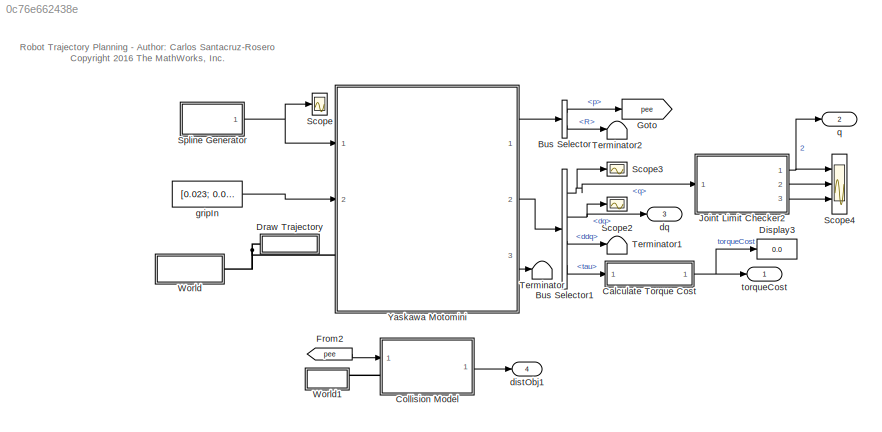
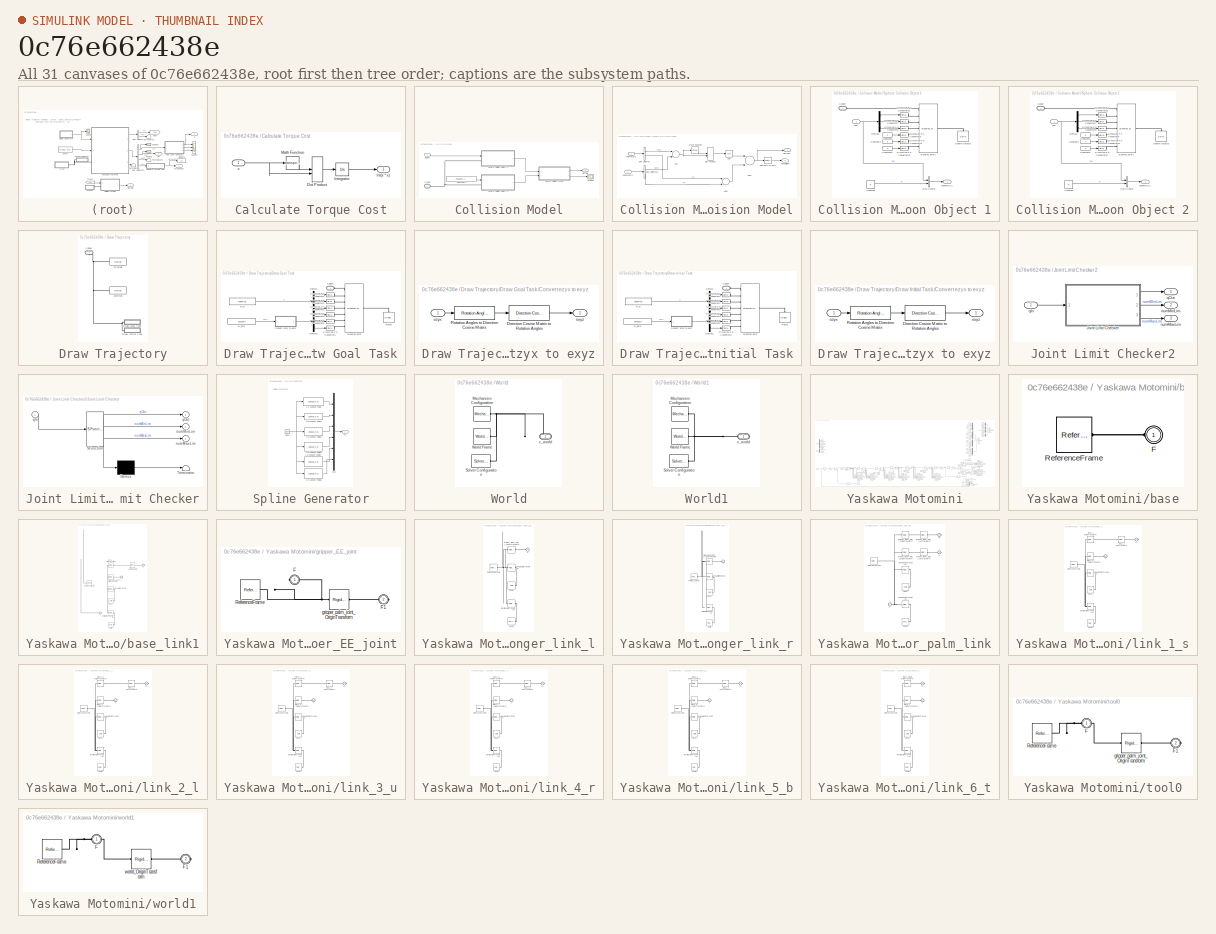
[diagram: thumbnail index - all 31 canvases of the model, root first then tree order]
MODEL slx_0c76e662438e
KIND model
CONFIG AbsTol = auto
CONFIG EnableMultiTasking = off
CONFIG FixedStep = 1e-3
CONFIG MaxStep = auto
CONFIG MinStep = auto
CONFIG RelTol = 1e-3
CONFIG SampleTimeConstraint = Unconstrained
CONFIG Solver = ode3
CONFIG SolverName = ode3
CONFIG StartTime = 0.0
CONFIG StopTime = totalTime
BLOCK [BusSelector] Bus Selector
  OutputAsBus = off
  OutputSignals = p,R
  Ports = [1, 2]
BLOCK [BusSelector] Bus Selector1
  OutputAsBus = off
  OutputSignals = q,dq,ddq,tau
  Ports = [1, 4]
BLOCK [SubSystem] Calculate Torque Cost
  Ports = [1, 1]
  RequestExecContextInheritance = off
BLOCK [DotProduct] Calculate Torque Cost/Dot Product
  OutDataTypeStr = Inherit: Inherit via internal rule
BLOCK [Outport] Calculate Torque Cost/Int(x'*x)
  IconDisplay = Port number
BLOCK [Integrator] Calculate Torque Cost/Integrator
  Ports = [1, 1]
BLOCK [Math] Calculate Torque Cost/Math Function
  Operator = transpose
  Ports = [1, 1]
BLOCK [Inport] Calculate Torque Cost/x
  IconDisplay = Port number
BLOCK [SubSystem] Collision Model
  Commented = on
  Ports = [1, 1, 0, 0, 0, 1]
  RequestExecContextInheritance = off
BLOCK [Constant] Collision Model/Constant2
  Value = obstacles(1).pos
BLOCK [Inport] Collision Model/EEPos
  IconDisplay = Port number
BLOCK [Scope] Collision Model/Scope5
  Floating = off
  NumInputPorts = 1
  Ports = [1]
  ScopeSpecificationString = Simulink.scopes.TimeScopeBlockCfg('CurrentConfiguration', extmgr.ConfigurationSet(extmgr.Configuration('Core','General UI',true),extmgr.Configuration('Core','Source UI',true),extmgr.Configuration('Sources','WiredSimulink',true,'DataLoggingVariableName','ScopeData5','DataLoggingLimitDataPoints',true,'DataLoggingSaveFormat','Array','DataLoggingDecimation','1','DataLoggingDecimateData',true),extmgr.C...<+1508ch>
BLOCK [SubSystem] Collision Model/Sphere Collision Model
  Ports = [2, 2]
  RequestExecContextInheritance = off
BLOCK [Sum] Collision Model/Sphere Collision Model/Add
  InputSameDT = off
  Inputs = +-
  OutDataTypeStr = Inherit: Inherit via internal rule
  Ports = [2, 1]
  SaturateOnIntegerOverflow = off
BLOCK [Sum] Collision Model/Sphere Collision Model/Add1
  InputSameDT = off
  Inputs = +-
  OutDataTypeStr = Inherit: Inherit via internal rule
  Ports = [2, 1]
  SaturateOnIntegerOverflow = off
BLOCK [Sum] Collision Model/Sphere Collision Model/Add2
  InputSameDT = off
  OutDataTypeStr = Inherit: Inherit via internal rule
  Ports = [2, 1]
  SaturateOnIntegerOverflow = off
BLOCK [BusSelector] Collision Model/Sphere Collision Model/Bus Selector
  OutputAsBus = off
  OutputSignals = pos,R
  Ports = [1, 2]
BLOCK [BusSelector] Collision Model/Sphere Collision Model/Bus Selector1
  OutputAsBus = off
  OutputSignals = pos,R
  Ports = [1, 2]
BLOCK [Reference] Collision Model/Sphere Collision Model/Compare To Zero  REF=simulink/Logic and Bit
Operations/Compare
To Zero
  Ports = [1, 1]
  SourceBlock = simulink/Logic and Bit\nOperations/Compare\nTo Zero
  SourceProductBaseCode = SL
  SourceProductName = Simulink
  SourceType = Compare To Zero
BLOCK [DotProduct] Collision Model/Sphere Collision Model/Dot Product
  OutDataTypeStr = Inherit: Inherit via internal rule
BLOCK [Math] Collision Model/Sphere Collision Model/Math Function
  Operator = transpose
  Ports = [1, 1]
BLOCK [Sqrt] Collision Model/Sphere Collision Model/Sqrt
BLOCK [Outport] Collision Model/Sphere Collision Model/distance
  IconDisplay = Port number
BLOCK [Outport] Collision Model/Sphere Collision Model/hasCollision
  IconDisplay = Port number
  Port = 2
BLOCK [Inport] Collision Model/Sphere Collision Model/sphereCO1
  IconDisplay = Port number
BLOCK [Inport] Collision Model/Sphere Collision Model/sphereCO2
  IconDisplay = Port number
  Port = 2
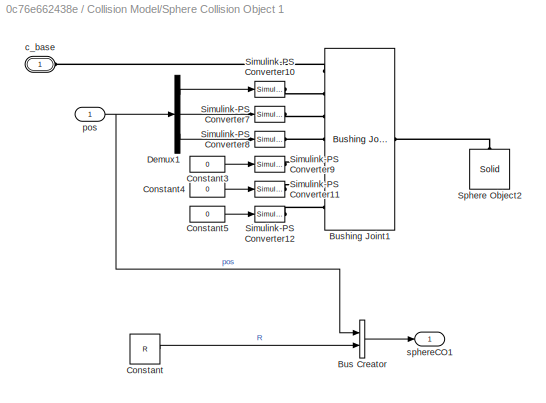
BLOCK [SubSystem] Collision Model/Sphere Collision Object 1
  Ports = [1, 1, 0, 0, 0, 1]
  RequestExecContextInheritance = off
BLOCK [BusCreator] Collision Model/Sphere Collision Object 1/Bus Creator
  DisplayOption = bar
  InheritFromInputs = on
  Inputs = 2
  Ports = [2, 1]
BLOCK [Reference] Collision Model/Sphere Collision Object 1/Bushing Joint1  REF=sm_lib/Joints/Bushing Joint
  Ports = [0, 0, 0, 0, 0, 7, 1]
  SourceBlock = sm_lib/Joints/Bushing Joint
  SourceProductBaseCode = MS
  SourceProductName = Simscape Multibody
  SourceType = Bushing Joint
BLOCK [Constant] Collision Model/Sphere Collision Object 1/Constant
  Value = R
BLOCK [Constant] Collision Model/Sphere Collision Object 1/Constant3
  Value = 0
BLOCK [Constant] Collision Model/Sphere Collision Object 1/Constant4
  Value = 0
BLOCK [Constant] Collision Model/Sphere Collision Object 1/Constant5
  Value = 0
BLOCK [Demux] Collision Model/Sphere Collision Object 1/Demux1
  DisplayOption = bar
  Outputs = 3
  Ports = [1, 3]
BLOCK [Reference] Collision Model/Sphere Collision Object 1/Simulink-PS Converter10  REF=nesl_utility/Simulink-PS
Converter
  Ports = [1, 0, 0, 0, 0, 0, 1]
  SourceBlock = nesl_utility/Simulink-PS\nConverter
  SourceProductBaseCode = SS
  SourceProductName = Simscape
  SourceType = Simulink-PS\nConverter
BLOCK [Reference] Collision Model/Sphere Collision Object 1/Simulink-PS Converter11  REF=nesl_utility/Simulink-PS
Converter
  Ports = [1, 0, 0, 0, 0, 0, 1]
  SourceBlock = nesl_utility/Simulink-PS\nConverter
  SourceProductBaseCode = SS
  SourceProductName = Simscape
  SourceType = Simulink-PS\nConverter
BLOCK [Reference] Collision Model/Sphere Collision Object 1/Simulink-PS Converter12  REF=nesl_utility/Simulink-PS
Converter
  Ports = [1, 0, 0, 0, 0, 0, 1]
  SourceBlock = nesl_utility/Simulink-PS\nConverter
  SourceProductBaseCode = SS
  SourceProductName = Simscape
  SourceType = Simulink-PS\nConverter
BLOCK [Reference] Collision Model/Sphere Collision Object 1/Simulink-PS Converter7  REF=nesl_utility/Simulink-PS
Converter
  Ports = [1, 0, 0, 0, 0, 0, 1]
  SourceBlock = nesl_utility/Simulink-PS\nConverter
  SourceProductBaseCode = SS
  SourceProductName = Simscape
  SourceType = Simulink-PS\nConverter
BLOCK [Reference] Collision Model/Sphere Collision Object 1/Simulink-PS Converter8  REF=nesl_utility/Simulink-PS
Converter
  Ports = [1, 0, 0, 0, 0, 0, 1]
  SourceBlock = nesl_utility/Simulink-PS\nConverter
  SourceProductBaseCode = SS
  SourceProductName = Simscape
  SourceType = Simulink-PS\nConverter
BLOCK [Reference] Collision Model/Sphere Collision Object 1/Simulink-PS Converter9  REF=nesl_utility/Simulink-PS
Converter
  Ports = [1, 0, 0, 0, 0, 0, 1]
  SourceBlock = nesl_utility/Simulink-PS\nConverter
  SourceProductBaseCode = SS
  SourceProductName = Simscape
  SourceType = Simulink-PS\nConverter
BLOCK [Reference] Collision Model/Sphere Collision Object 1/Sphere Object2  REF=sm_lib/Body Elements/Solid
  Ports = [0, 0, 0, 0, 0, 0, 1]
  SourceBlock = sm_lib/Body Elements/Solid
  SourceProductBaseCode = MS
  SourceProductName = Simscape Multibody
  SourceType = Solid
BLOCK [PMIOPort] Collision Model/Sphere Collision Object 1/c_base
  Side = Left
BLOCK [Inport] Collision Model/Sphere Collision Object 1/pos
  IconDisplay = Port number
BLOCK [Outport] Collision Model/Sphere Collision Object 1/sphereCO1
  IconDisplay = Port number
BLOCK [SubSystem] Collision Model/Sphere Collision Object 2
  Ports = [1, 1, 0, 0, 0, 1]
  RequestExecContextInheritance = off
BLOCK [BusCreator] Collision Model/Sphere Collision Object 2/Bus Creator
  DisplayOption = bar
  InheritFromInputs = on
  Inputs = 2
  Ports = [2, 1]
BLOCK [Reference] Collision Model/Sphere Collision Object 2/Bushing Joint1  REF=sm_lib/Joints/Bushing Joint
  Ports = [0, 0, 0, 0, 0, 7, 1]
  SourceBlock = sm_lib/Joints/Bushing Joint
  SourceProductBaseCode = MS
  SourceProductName = Simscape Multibody
  SourceType = Bushing Joint
BLOCK [Constant] Collision Model/Sphere Collision Object 2/Constant
  Value = R
BLOCK [Constant] Collision Model/Sphere Collision Object 2/Constant3
  Value = 0
BLOCK [Constant] Collision Model/Sphere Collision Object 2/Constant4
  Value = 0
BLOCK [Constant] Collision Model/Sphere Collision Object 2/Constant5
  Value = 0
BLOCK [Demux] Collision Model/Sphere Collision Object 2/Demux1
  DisplayOption = bar
  Outputs = 3
  Ports = [1, 3]
BLOCK [Reference] Collision Model/Sphere Collision Object 2/Simulink-PS Converter10  REF=nesl_utility/Simulink-PS
Converter
  Ports = [1, 0, 0, 0, 0, 0, 1]
  SourceBlock = nesl_utility/Simulink-PS\nConverter
  SourceProductBaseCode = SS
  SourceProductName = Simscape
  SourceType = Simulink-PS\nConverter
BLOCK [Reference] Collision Model/Sphere Collision Object 2/Simulink-PS Converter11  REF=nesl_utility/Simulink-PS
Converter
  Ports = [1, 0, 0, 0, 0, 0, 1]
  SourceBlock = nesl_utility/Simulink-PS\nConverter
  SourceProductBaseCode = SS
  SourceProductName = Simscape
  SourceType = Simulink-PS\nConverter
BLOCK [Reference] Collision Model/Sphere Collision Object 2/Simulink-PS Converter12  REF=nesl_utility/Simulink-PS
Converter
  Ports = [1, 0, 0, 0, 0, 0, 1]
  SourceBlock = nesl_utility/Simulink-PS\nConverter
  SourceProductBaseCode = SS
  SourceProductName = Simscape
  SourceType = Simulink-PS\nConverter
BLOCK [Reference] Collision Model/Sphere Collision Object 2/Simulink-PS Converter7  REF=nesl_utility/Simulink-PS
Converter
  Ports = [1, 0, 0, 0, 0, 0, 1]
  SourceBlock = nesl_utility/Simulink-PS\nConverter
  SourceProductBaseCode = SS
  SourceProductName = Simscape
  SourceType = Simulink-PS\nConverter
BLOCK [Reference] Collision Model/Sphere Collision Object 2/Simulink-PS Converter8  REF=nesl_utility/Simulink-PS
Converter
  Ports = [1, 0, 0, 0, 0, 0, 1]
  SourceBlock = nesl_utility/Simulink-PS\nConverter
  SourceProductBaseCode = SS
  SourceProductName = Simscape
  SourceType = Simulink-PS\nConverter
BLOCK [Reference] Collision Model/Sphere Collision Object 2/Simulink-PS Converter9  REF=nesl_utility/Simulink-PS
Converter
  Ports = [1, 0, 0, 0, 0, 0, 1]
  SourceBlock = nesl_utility/Simulink-PS\nConverter
  SourceProductBaseCode = SS
  SourceProductName = Simscape
  SourceType = Simulink-PS\nConverter
BLOCK [Reference] Collision Model/Sphere Collision Object 2/Sphere Object2  REF=sm_lib/Body Elements/Solid
  Ports = [0, 0, 0, 0, 0, 0, 1]
  SourceBlock = sm_lib/Body Elements/Solid
  SourceProductBaseCode = MS
  SourceProductName = Simscape Multibody
  SourceType = Solid
BLOCK [PMIOPort] Collision Model/Sphere Collision Object 2/c_base
  Side = Left
BLOCK [Inport] Collision Model/Sphere Collision Object 2/pos
  IconDisplay = Port number
BLOCK [Outport] Collision Model/Sphere Collision Object 2/sphereCO1
  IconDisplay = Port number
BLOCK [PMIOPort] Collision Model/c_base
  Side = Left
BLOCK [Outport] Collision Model/distObj1
  IconDisplay = Port number
BLOCK [Display] Display3
  Decimation = 1
  Ports = [1]
BLOCK [SubSystem] Draw Trajectory
  Ports = [0, 0, 0, 0, 0, 1]
  RequestExecContextInheritance = off
BLOCK [SubSystem] Draw Trajectory/Draw Goal Task
  Ports = [0, 0, 0, 0, 0, 1]
  RequestExecContextInheritance = off
BLOCK [Reference] Draw Trajectory/Draw Goal Task/Bushing Joint  REF=sm_lib/Joints/Bushing Joint
  Ports = [0, 0, 0, 0, 0, 7, 1]
  SourceBlock = sm_lib/Joints/Bushing Joint
  SourceProductBaseCode = MS
  SourceProductName = Simscape Multibody
  SourceType = Bushing Joint
BLOCK [SubSystem] Draw Trajectory/Draw Goal Task/Convert ezyx to exyz
  Ports = [1, 1]
  RequestExecContextInheritance = off
BLOCK [Reference] Draw Trajectory/Draw Goal Task/Convert ezyx to exyz/Direction Cosine Matrix to Rotation Angles  REF=sharedtransform/Direction Cosine Matrix
to Rotation Angles
  AttributesFormatString = Rotation Order: %<rotationOrder>
  Ports = [1, 1]
  SourceBlock = sharedtransform/Direction Cosine Matrix\nto Rotation Angles
  SourceProductBaseCode = AE
  SourceProductName = Aerospace Blockset
  SourceType = DCM2Ang
BLOCK [Reference] Draw Trajectory/Draw Goal Task/Convert ezyx to exyz/Rotation Angles to Direction Cosine Matrix  REF=sharedtransform/Rotation Angles to
Direction Cosine Matrix
  AttributesFormatString = Rotation Order: %<rotationOrder>
  Ports = [1, 1]
  SourceBlock = sharedtransform/Rotation Angles to\nDirection Cosine Matrix
  SourceProductBaseCode = AE
  SourceProductName = Aerospace Blockset
  SourceType = Ang2DCM
BLOCK [Outport] Draw Trajectory/Draw Goal Task/Convert ezyx to exyz/exyz
  IconDisplay = Port number
BLOCK [Inport] Draw Trajectory/Draw Goal Task/Convert ezyx to exyz/ezyx
  IconDisplay = Port number
BLOCK [Demux] Draw Trajectory/Draw Goal Task/Demux
  DisplayOption = bar
  Outputs = 3
  Ports = [1, 3]
BLOCK [Demux] Draw Trajectory/Draw Goal Task/Demux1
  DisplayOption = bar
  Outputs = 3
  Ports = [1, 3]
BLOCK [Reference] Draw Trajectory/Draw Goal Task/Frame  REF=sm_lib/Body Elements/Graphic
  Ports = [0, 0, 0, 0, 0, 0, 1]
  SourceBlock = sm_lib/Body Elements/Graphic
  SourceProductBaseCode = MS
  SourceProductName = Simscape Multibody
  SourceType = Graphic
BLOCK [Reference] Draw Trajectory/Draw Goal Task/Simulink-PS Converter1  REF=nesl_utility/Simulink-PS
Converter
  Ports = [1, 0, 0, 0, 0, 0, 1]
  SourceBlock = nesl_utility/Simulink-PS\nConverter
  SourceProductBaseCode = SS
  SourceProductName = Simscape
  SourceType = Simulink-PS\nConverter
BLOCK [Reference] Draw Trajectory/Draw Goal Task/Simulink-PS Converter2  REF=nesl_utility/Simulink-PS
Converter
  Ports = [1, 0, 0, 0, 0, 0, 1]
  SourceBlock = nesl_utility/Simulink-PS\nConverter
  SourceProductBaseCode = SS
  SourceProductName = Simscape
  SourceType = Simulink-PS\nConverter
BLOCK [Reference] Draw Trajectory/Draw Goal Task/Simulink-PS Converter3  REF=nesl_utility/Simulink-PS
Converter
  Ports = [1, 0, 0, 0, 0, 0, 1]
  SourceBlock = nesl_utility/Simulink-PS\nConverter
  SourceProductBaseCode = SS
  SourceProductName = Simscape
  SourceType = Simulink-PS\nConverter
BLOCK [Reference] Draw Trajectory/Draw Goal Task/Simulink-PS Converter4  REF=nesl_utility/Simulink-PS
Converter
  Ports = [1, 0, 0, 0, 0, 0, 1]
  SourceBlock = nesl_utility/Simulink-PS\nConverter
  SourceProductBaseCode = SS
  SourceProductName = Simscape
  SourceType = Simulink-PS\nConverter
BLOCK [Reference] Draw Trajectory/Draw Goal Task/Simulink-PS Converter5  REF=nesl_utility/Simulink-PS
Converter
  Ports = [1, 0, 0, 0, 0, 0, 1]
  SourceBlock = nesl_utility/Simulink-PS\nConverter
  SourceProductBaseCode = SS
  SourceProductName = Simscape
  SourceType = Simulink-PS\nConverter
BLOCK [Reference] Draw Trajectory/Draw Goal Task/Simulink-PS Converter6  REF=nesl_utility/Simulink-PS
Converter
  Ports = [1, 0, 0, 0, 0, 0, 1]
  SourceBlock = nesl_utility/Simulink-PS\nConverter
  SourceProductBaseCode = SS
  SourceProductName = Simscape
  SourceType = Simulink-PS\nConverter
BLOCK [PMIOPort] Draw Trajectory/Draw Goal Task/c_base
  Side = Left
BLOCK [Constant] Draw Trajectory/Draw Goal Task/w_ezyx
  Value = TaskEzyx
BLOCK [Constant] Draw Trajectory/Draw Goal Task/w_p
  Value = TaskPos
BLOCK [SubSystem] Draw Trajectory/Draw Initial Task
  Commented = on
  Ports = [0, 0, 0, 0, 0, 1]
  RequestExecContextInheritance = off
BLOCK [Reference] Draw Trajectory/Draw Initial Task/Bushing Joint  REF=sm_lib/Joints/Bushing Joint
  Ports = [0, 0, 0, 0, 0, 7, 1]
  SourceBlock = sm_lib/Joints/Bushing Joint
  SourceProductBaseCode = MS
  SourceProductName = Simscape Multibody
  SourceType = Bushing Joint
BLOCK [SubSystem] Draw Trajectory/Draw Initial Task/Convert ezyx to exyz
  Ports = [1, 1]
  RequestExecContextInheritance = off
BLOCK [Reference] Draw Trajectory/Draw Initial Task/Convert ezyx to exyz/Direction Cosine Matrix to Rotation Angles  REF=aerolibtransform2/Direction Cosine Matrix
to Rotation Angles
  AttributesFormatString = Rotation Order: %<rotationOrder>
  Ports = [1, 1]
  SourceBlock = aerolibtransform2/Direction Cosine Matrix\nto Rotation Angles
  SourceProductBaseCode = AE
  SourceProductName = Aerospace Blockset
  SourceType = DCM2Ang
BLOCK [Reference] Draw Trajectory/Draw Initial Task/Convert ezyx to exyz/Rotation Angles to Direction Cosine Matrix  REF=aerolibtransform2/Rotation Angles to
Direction Cosine Matrix
  AttributesFormatString = Rotation Order: %<rotationOrder>
  Ports = [1, 1]
  SourceBlock = aerolibtransform2/Rotation Angles to\nDirection Cosine Matrix
  SourceProductBaseCode = AE
  SourceProductName = Aerospace Blockset
  SourceType = Ang2DCM
BLOCK [Outport] Draw Trajectory/Draw Initial Task/Convert ezyx to exyz/exyz
  IconDisplay = Port number
BLOCK [Inport] Draw Trajectory/Draw Initial Task/Convert ezyx to exyz/ezyx
  IconDisplay = Port number
BLOCK [Demux] Draw Trajectory/Draw Initial Task/Demux
  DisplayOption = bar
  Outputs = 3
  Ports = [1, 3]
BLOCK [Demux] Draw Trajectory/Draw Initial Task/Demux1
  DisplayOption = bar
  Outputs = 3
  Ports = [1, 3]
BLOCK [Reference] Draw Trajectory/Draw Initial Task/Frame  REF=sm_lib/Body Elements/Graphic
  Ports = [0, 0, 0, 0, 0, 0, 1]
  SourceBlock = sm_lib/Body Elements/Graphic
  SourceProductBaseCode = MS
  SourceProductName = Simscape Multibody
  SourceType = Graphic
BLOCK [Reference] Draw Trajectory/Draw Initial Task/Simulink-PS Converter1  REF=nesl_utility/Simulink-PS
Converter
  Ports = [1, 0, 0, 0, 0, 0, 1]
  SourceBlock = nesl_utility/Simulink-PS\nConverter
  SourceProductBaseCode = SS
  SourceProductName = Simscape
  SourceType = Simulink-PS\nConverter
BLOCK [Reference] Draw Trajectory/Draw Initial Task/Simulink-PS Converter2  REF=nesl_utility/Simulink-PS
Converter
  Ports = [1, 0, 0, 0, 0, 0, 1]
  SourceBlock = nesl_utility/Simulink-PS\nConverter
  SourceProductBaseCode = SS
  SourceProductName = Simscape
  SourceType = Simulink-PS\nConverter
BLOCK [Reference] Draw Trajectory/Draw Initial Task/Simulink-PS Converter3  REF=nesl_utility/Simulink-PS
Converter
  Ports = [1, 0, 0, 0, 0, 0, 1]
  SourceBlock = nesl_utility/Simulink-PS\nConverter
  SourceProductBaseCode = SS
  SourceProductName = Simscape
  SourceType = Simulink-PS\nConverter
BLOCK [Reference] Draw Trajectory/Draw Initial Task/Simulink-PS Converter4  REF=nesl_utility/Simulink-PS
Converter
  Ports = [1, 0, 0, 0, 0, 0, 1]
  SourceBlock = nesl_utility/Simulink-PS\nConverter
  SourceProductBaseCode = SS
  SourceProductName = Simscape
  SourceType = Simulink-PS\nConverter
BLOCK [Reference] Draw Trajectory/Draw Initial Task/Simulink-PS Converter5  REF=nesl_utility/Simulink-PS
Converter
  Ports = [1, 0, 0, 0, 0, 0, 1]
  SourceBlock = nesl_utility/Simulink-PS\nConverter
  SourceProductBaseCode = SS
  SourceProductName = Simscape
  SourceType = Simulink-PS\nConverter
BLOCK [Reference] Draw Trajectory/Draw Initial Task/Simulink-PS Converter6  REF=nesl_utility/Simulink-PS
Converter
  Ports = [1, 0, 0, 0, 0, 0, 1]
  SourceBlock = nesl_utility/Simulink-PS\nConverter
  SourceProductBaseCode = SS
  SourceProductName = Simscape
  SourceType = Simulink-PS\nConverter
BLOCK [PMIOPort] Draw Trajectory/Draw Initial Task/c_base
  Side = Left
BLOCK [Constant] Draw Trajectory/Draw Initial Task/w_ezyx
  Value = TaskEzyx
BLOCK [Constant] Draw Trajectory/Draw Initial Task/w_p
  Value = TaskPos
BLOCK [Reference] Draw Trajectory/Optimal  REF=sm_lib/Curves and Surfaces/Spline
  Ports = [0, 0, 0, 0, 0, 1, 1]
  SourceBlock = sm_lib/Curves and Surfaces/Spline
  SourceProductBaseCode = MS
  SourceProductName = Simscape Multibody
  SourceType = Spline
BLOCK [Reference] Draw Trajectory/Original  REF=sm_lib/Curves and Surfaces/Spline
  Ports = [0, 0, 0, 0, 0, 1, 1]
  SourceBlock = sm_lib/Curves and Surfaces/Spline
  SourceProductBaseCode = MS
  SourceProductName = Simscape Multibody
  SourceType = Spline
BLOCK [PMIOPort] Draw Trajectory/c_base
  Side = Left
BLOCK [From] From2
  GotoTag = pee
BLOCK [Goto] Goto
  GotoTag = pee
BLOCK [SubSystem] Joint Limit Checker2
  Ports = [1, 3]
  RequestExecContextInheritance = off
  VariantControl = mode == OP2Model ||  mode == OP2ROS
BLOCK [SubSystem] Joint Limit Checker2/Joint Limit Checker
  ErrorFcn = Stateflow.Translate.translate
  PermitHierarchicalResolution = ExplicitOnly
  Ports = [1, 3]
  RequestExecContextInheritance = off
  SFBlockType = MATLAB Function
  TreatAsAtomicUnit = on
BLOCK [Demux] Joint Limit Checker2/Joint Limit Checker/ Demux 
  Outputs = 1
  Ports = [1, 1]
BLOCK [S-Function] Joint Limit Checker2/Joint Limit Checker/ SFunction 
  EnableBusSupport = on
  FunctionName = sf_sfun
  Parameters = qMax,qMin
  PortCounts = [1 4]
  Ports = [1, 4]
  SFcnIsStateOwnerBlock = off
  SFunctionDeploymentMode = off
  Tag = Stateflow S-Function motominiPlanning 2
BLOCK [Terminator] Joint Limit Checker2/Joint Limit Checker/ Terminator 
BLOCK [Outport] Joint Limit Checker2/Joint Limit Checker/numMaxLim
  IconDisplay = Port number
  Port = 3
BLOCK [Outport] Joint Limit Checker2/Joint Limit Checker/numMinLim
  IconDisplay = Port number
  Port = 2
BLOCK [Inport] Joint Limit Checker2/Joint Limit Checker/qIn
  IconDisplay = Port number
BLOCK [Outport] Joint Limit Checker2/Joint Limit Checker/qOut
  IconDisplay = Port number
BLOCK [Outport] Joint Limit Checker2/numMaxLim
  IconDisplay = Port number
  Port = 3
BLOCK [Outport] Joint Limit Checker2/numMinLim
  IconDisplay = Port number
  Port = 2
BLOCK [Inport] Joint Limit Checker2/qIn
  IconDisplay = Port number
BLOCK [Outport] Joint Limit Checker2/qOut
  IconDisplay = Port number
BLOCK [Scope] Scope
  Floating = off
  NumInputPorts = 1
  Ports = [1]
  ScopeSpecificationString = Simulink.scopes.TimeScopeBlockCfg('CurrentConfiguration', extmgr.ConfigurationSet(extmgr.Configuration('Core','General UI',true),extmgr.Configuration('Core','Source UI',true),extmgr.Configuration('Sources','WiredSimulink',true),extmgr.Configuration('Visuals','Time Domain',true,'SerializedDisplays',{struct('MinYLimReal','-1.30817','MaxYLimReal','3.57174','YLabelReal','','MinYLimMag','0.00000','MaxY...<+1502ch>
BLOCK [Scope] Scope2
  Floating = off
  NumInputPorts = 1
  Ports = [1]
  ScopeSpecificationString = Simulink.scopes.TimeScopeBlockCfg('CurrentConfiguration', extmgr.ConfigurationSet(extmgr.Configuration('Core','General UI',true),extmgr.Configuration('Core','Source UI',true),extmgr.Configuration('Sources','WiredSimulink',true,'DataLoggingVariableName','ScopeData2'),extmgr.Configuration('Visuals','Time Domain',true,'SerializedDisplays',{struct('MinYLimReal','-3.86025','MaxYLimReal','4.2376','YLabe...<+1430ch>
BLOCK [Scope] Scope3
  Floating = off
  NumInputPorts = 1
  Ports = [1]
  ScopeSpecificationString = Simulink.scopes.TimeScopeBlockCfg('CurrentConfiguration', extmgr.ConfigurationSet(extmgr.Configuration('Core','General UI',true),extmgr.Configuration('Core','Source UI',true),extmgr.Configuration('Sources','WiredSimulink',true,'DataLoggingVariableName','ScopeData3'),extmgr.Configuration('Visuals','Time Domain',true,'SerializedDisplays',{struct('MinYLimReal','-1.88283','MaxYLimReal','3.50594','YLab...<+1428ch>
BLOCK [Scope] Scope4
  Floating = off
  NumInputPorts = 3
  Ports = [3]
  ScopeSpecificationString = Simulink.scopes.TimeScopeBlockCfg('CurrentConfiguration', extmgr.ConfigurationSet(extmgr.Configuration('Core','General UI',true),extmgr.Configuration('Core','Source UI',true),extmgr.Configuration('Sources','WiredSimulink',true,'DataLoggingVariableName','ScopeData3','DataLoggingLimitDataPoints',true,'DataLoggingSaveFormat','Array','DataLoggingDecimation','1','DataLoggingDecimateData',true),extmgr.C...<+2959ch>
BLOCK [SubSystem] Spline Generator
  Ports = [0, 1]
  RequestExecContextInheritance = off
BLOCK [Lookup_n-D] Spline Generator/1-D Lookup Table
  BreakpointsForDimension1 = t
  ExtrapMethod = Cubic spline
  InternalRulePriority = Speed
  InterpMethod = Cubic spline
  LookupTableObject = ''
  NumberOfTableDimensions = 1
  Ports = [1, 1]
  RndMeth = Simplest
  Table = Qt(1,:)
BLOCK [Lookup_n-D] Spline Generator/1-D Lookup Table1
  BreakpointsForDimension1 = t
  ExtrapMethod = Cubic spline
  InternalRulePriority = Speed
  InterpMethod = Cubic spline
  LookupTableObject = ''
  NumberOfTableDimensions = 1
  Ports = [1, 1]
  RndMeth = Simplest
  Table = Qt(2,:)
BLOCK [Lookup_n-D] Spline Generator/1-D Lookup Table2
  BreakpointsForDimension1 = t
  ExtrapMethod = Cubic spline
  InternalRulePriority = Speed
  InterpMethod = Cubic spline
  LookupTableObject = ''
  NumberOfTableDimensions = 1
  Ports = [1, 1]
  RndMeth = Simplest
  Table = Qt(3,:)
BLOCK [Lookup_n-D] Spline Generator/1-D Lookup Table3
  BreakpointsForDimension1 = t
  ExtrapMethod = Cubic spline
  InternalRulePriority = Speed
  InterpMethod = Cubic spline
  LookupTableObject = ''
  NumberOfTableDimensions = 1
  Ports = [1, 1]
  RndMeth = Simplest
  Table = Qt(4,:)
BLOCK [Lookup_n-D] Spline Generator/1-D Lookup Table4
  BreakpointsForDimension1 = t
  ExtrapMethod = Cubic spline
  InternalRulePriority = Speed
  InterpMethod = Cubic spline
  LookupTableObject = ''
  NumberOfTableDimensions = 1
  Ports = [1, 1]
  RndMeth = Simplest
  Table = Qt(5,:)
BLOCK [Lookup_n-D] Spline Generator/1-D Lookup Table5
  BreakpointsForDimension1 = t
  ExtrapMethod = Cubic spline
  InternalRulePriority = Speed
  InterpMethod = Cubic spline
  LookupTableObject = ''
  NumberOfTableDimensions = 1
  Ports = [1, 1]
  RndMeth = Simplest
  Table = Qt(6,:)
BLOCK [Clock] Spline Generator/Clock
BLOCK [Mux] Spline Generator/Mux
  DisplayOption = bar
  Inputs = 6
  Ports = [6, 1]
BLOCK [Outport] Spline Generator/q_t
  IconDisplay = Port number
BLOCK [Terminator] Terminator
BLOCK [Terminator] Terminator1
BLOCK [Terminator] Terminator2
BLOCK [SubSystem] World
  Ports = [0, 0, 0, 0, 0, 0, 1]
  RequestExecContextInheritance = off
BLOCK [Reference] World/Mechanism Configuration  REF=sm_lib/Utilities/Mechanism
Configuration
  Ports = [0, 0, 0, 0, 0, 0, 1]
  SourceBlock = sm_lib/Utilities/Mechanism\nConfiguration
  SourceProductBaseCode = MS
  SourceProductName = Simscape Multibody
  SourceType = Mechanism\nConfiguration
BLOCK [Reference] World/Solver Configuration  REF=nesl_utility/Solver
Configuration
  Ports = [0, 0, 0, 0, 0, 0, 1]
  SourceBlock = nesl_utility/Solver\nConfiguration
  SourceProductBaseCode = SS
  SourceProductName = Simscape
  SourceType = Solver\nConfiguration
BLOCK [Reference] World/World Frame  REF=sm_lib/Frames and
Transforms/World Frame
  Ports = [0, 0, 0, 0, 0, 0, 1]
  SourceBlock = sm_lib/Frames and\nTransforms/World Frame
  SourceProductBaseCode = MS
  SourceProductName = Simscape Multibody
  SourceType = World Frame
BLOCK [PMIOPort] World/c_world
  Side = Right
BLOCK [SubSystem] World1
  Ports = [0, 0, 0, 0, 0, 0, 1]
  RequestExecContextInheritance = off
BLOCK [Reference] World1/Mechanism Configuration  REF=sm_lib/Utilities/Mechanism
Configuration
  Ports = [0, 0, 0, 0, 0, 0, 1]
  SourceBlock = sm_lib/Utilities/Mechanism\nConfiguration
  SourceProductBaseCode = MS
  SourceProductName = Simscape Multibody
  SourceType = Mechanism\nConfiguration
BLOCK [Reference] World1/Solver Configuration  REF=nesl_utility/Solver
Configuration
  Ports = [0, 0, 0, 0, 0, 0, 1]
  SourceBlock = nesl_utility/Solver\nConfiguration
  SourceProductBaseCode = SS
  SourceProductName = Simscape
  SourceType = Solver\nConfiguration
BLOCK [Reference] World1/World Frame  REF=sm_lib/Frames and
Transforms/World Frame
  Ports = [0, 0, 0, 0, 0, 0, 1]
  SourceBlock = sm_lib/Frames and\nTransforms/World Frame
  SourceProductBaseCode = MS
  SourceProductName = Simscape Multibody
  SourceType = World Frame
BLOCK [PMIOPort] World1/c_world
  Side = Right
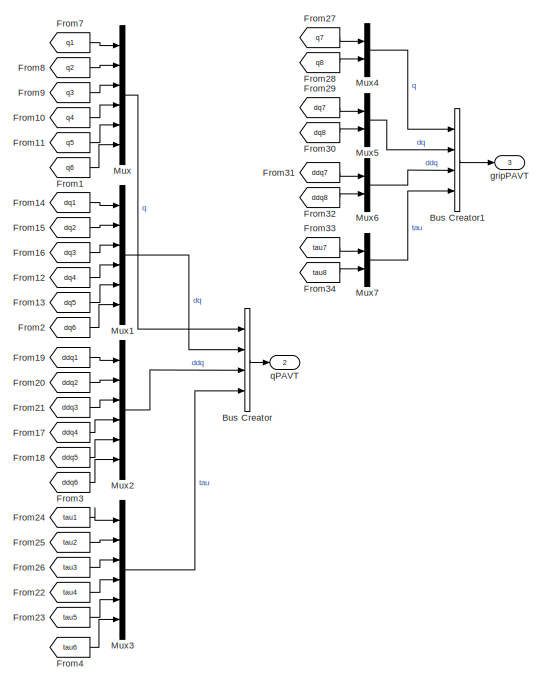
[diagram: Yaskawa Motomini - part 1/5, top right region]
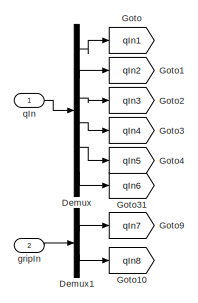
[diagram: Yaskawa Motomini - part 2/5, middle left region]
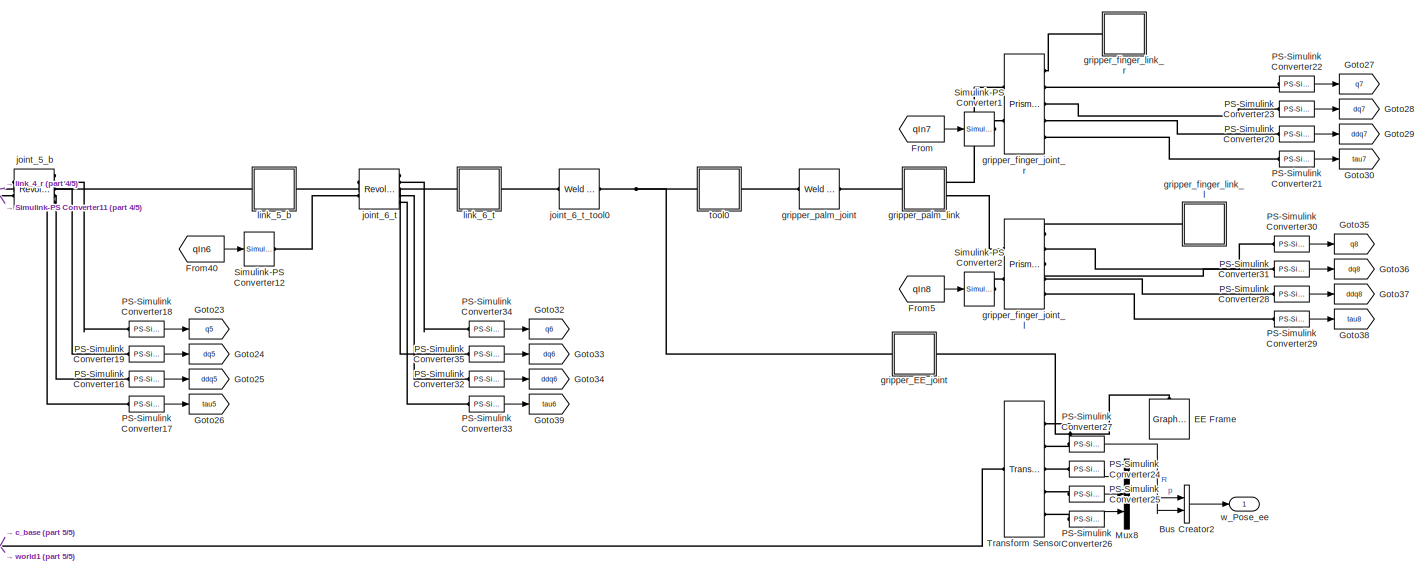
[diagram: Yaskawa Motomini - part 3/5, bottom right region]
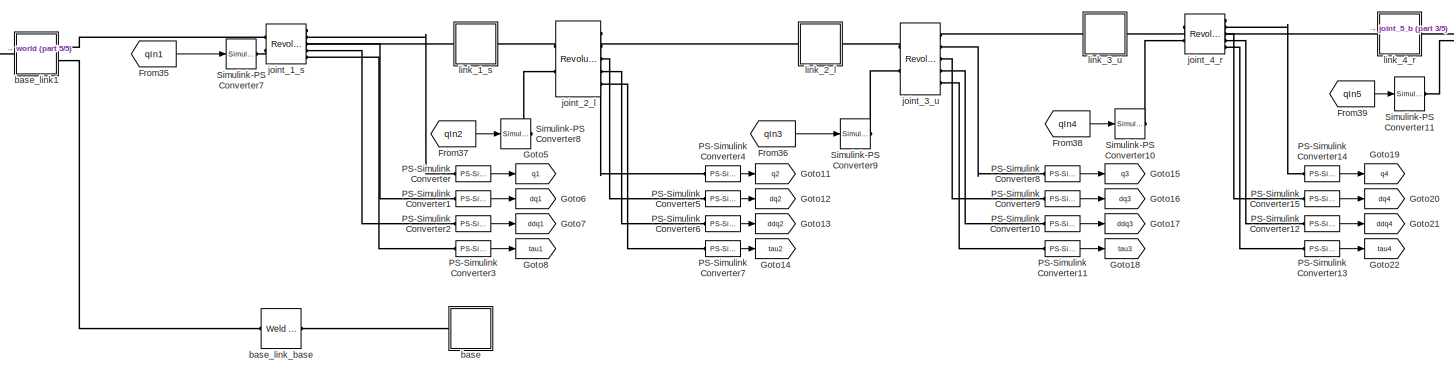
[diagram: Yaskawa Motomini - part 4/5, bottom left region]
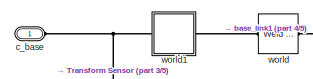
[diagram: Yaskawa Motomini - part 5/5, bottom left region]
BLOCK [SubSystem] Yaskawa Motomini
  Ports = [2, 3, 0, 0, 0, 1]
  RequestExecContextInheritance = off
BLOCK [BusCreator] Yaskawa Motomini/Bus Creator
  DisplayOption = bar
  InheritFromInputs = on
  Inputs = 4
  Ports = [4, 1]
BLOCK [BusCreator] Yaskawa Motomini/Bus Creator1
  DisplayOption = bar
  InheritFromInputs = on
  Inputs = 4
  Ports = [4, 1]
BLOCK [BusCreator] Yaskawa Motomini/Bus Creator2
  DisplayOption = bar
  InheritFromInputs = on
  Inputs = 2
  Ports = [2, 1]
BLOCK [Demux] Yaskawa Motomini/Demux
  DisplayOption = bar
  Outputs = 6
  Ports = [1, 6]
BLOCK [Demux] Yaskawa Motomini/Demux1
  DisplayOption = bar
  Outputs = 2
  Ports = [1, 2]
BLOCK [Reference] Yaskawa Motomini/EE Frame  REF=sm_lib/Body Elements/Graphic
  Ports = [0, 0, 0, 0, 0, 0, 1]
  SourceBlock = sm_lib/Body Elements/Graphic
  SourceProductBaseCode = MS
  SourceProductName = Simscape Multibody
  SourceType = Graphic
BLOCK [From] Yaskawa Motomini/From
  GotoTag = qIn7
BLOCK [From] Yaskawa Motomini/From1
  GotoTag = q6
BLOCK [From] Yaskawa Motomini/From10
  GotoTag = q4
BLOCK [From] Yaskawa Motomini/From11
  GotoTag = q5
BLOCK [From] Yaskawa Motomini/From12
  GotoTag = dq4
BLOCK [From] Yaskawa Motomini/From13
  GotoTag = dq5
BLOCK [From] Yaskawa Motomini/From14
  GotoTag = dq1
BLOCK [From] Yaskawa Motomini/From15
  GotoTag = dq2
BLOCK [From] Yaskawa Motomini/From16
  GotoTag = dq3
BLOCK [From] Yaskawa Motomini/From17
  GotoTag = ddq4
BLOCK [From] Yaskawa Motomini/From18
  GotoTag = ddq5
BLOCK [From] Yaskawa Motomini/From19
  GotoTag = ddq1
BLOCK [From] Yaskawa Motomini/From2
  GotoTag = dq6
BLOCK [From] Yaskawa Motomini/From20
  GotoTag = ddq2
BLOCK [From] Yaskawa Motomini/From21
  GotoTag = ddq3
BLOCK [From] Yaskawa Motomini/From22
  GotoTag = tau4
BLOCK [From] Yaskawa Motomini/From23
  GotoTag = tau5
BLOCK [From] Yaskawa Motomini/From24
  GotoTag = tau1
BLOCK [From] Yaskawa Motomini/From25
  GotoTag = tau2
BLOCK [From] Yaskawa Motomini/From26
  GotoTag = tau3
BLOCK [From] Yaskawa Motomini/From27
  GotoTag = q7
BLOCK [From] Yaskawa Motomini/From28
  GotoTag = q8
BLOCK [From] Yaskawa Motomini/From29
  GotoTag = dq7
BLOCK [From] Yaskawa Motomini/From3
  GotoTag = ddq6
BLOCK [From] Yaskawa Motomini/From30
  GotoTag = dq8
BLOCK [From] Yaskawa Motomini/From31
  GotoTag = ddq7
BLOCK [From] Yaskawa Motomini/From32
  GotoTag = ddq8
BLOCK [From] Yaskawa Motomini/From33
  GotoTag = tau7
BLOCK [From] Yaskawa Motomini/From34
  GotoTag = tau8
BLOCK [From] Yaskawa Motomini/From35
  GotoTag = qIn1
BLOCK [From] Yaskawa Motomini/From36
  GotoTag = qIn3
BLOCK [From] Yaskawa Motomini/From37
  GotoTag = qIn2
BLOCK [From] Yaskawa Motomini/From38
  GotoTag = qIn4
BLOCK [From] Yaskawa Motomini/From39
  GotoTag = qIn5
BLOCK [From] Yaskawa Motomini/From4
  GotoTag = tau6
BLOCK [From] Yaskawa Motomini/From40
  GotoTag = qIn6
BLOCK [From] Yaskawa Motomini/From5
  GotoTag = qIn8
BLOCK [From] Yaskawa Motomini/From7
  GotoTag = q1
BLOCK [From] Yaskawa Motomini/From8
  GotoTag = q2
BLOCK [From] Yaskawa Motomini/From9
  GotoTag = q3
BLOCK [Goto] Yaskawa Motomini/Goto
  GotoTag = qIn1
BLOCK [Goto] Yaskawa Motomini/Goto1
  GotoTag = qIn2
BLOCK [Goto] Yaskawa Motomini/Goto10
  GotoTag = qIn8
BLOCK [Goto] Yaskawa Motomini/Goto11
  GotoTag = q2
BLOCK [Goto] Yaskawa Motomini/Goto12
  GotoTag = dq2
BLOCK [Goto] Yaskawa Motomini/Goto13
  GotoTag = ddq2
BLOCK [Goto] Yaskawa Motomini/Goto14
  GotoTag = tau2
BLOCK [Goto] Yaskawa Motomini/Goto15
  GotoTag = q3
BLOCK [Goto] Yaskawa Motomini/Goto16
  GotoTag = dq3
BLOCK [Goto] Yaskawa Motomini/Goto17
  GotoTag = ddq3
BLOCK [Goto] Yaskawa Motomini/Goto18
  GotoTag = tau3
BLOCK [Goto] Yaskawa Motomini/Goto19
  GotoTag = q4
BLOCK [Goto] Yaskawa Motomini/Goto2
  GotoTag = qIn3
BLOCK [Goto] Yaskawa Motomini/Goto20
  GotoTag = dq4
BLOCK [Goto] Yaskawa Motomini/Goto21
  GotoTag = ddq4
BLOCK [Goto] Yaskawa Motomini/Goto22
  GotoTag = tau4
BLOCK [Goto] Yaskawa Motomini/Goto23
  GotoTag = q5
BLOCK [Goto] Yaskawa Motomini/Goto24
  GotoTag = dq5
BLOCK [Goto] Yaskawa Motomini/Goto25
  GotoTag = ddq5
BLOCK [Goto] Yaskawa Motomini/Goto26
  GotoTag = tau5
BLOCK [Goto] Yaskawa Motomini/Goto27
  GotoTag = q7
BLOCK [Goto] Yaskawa Motomini/Goto28
  GotoTag = dq7
BLOCK [Goto] Yaskawa Motomini/Goto29
  GotoTag = ddq7
BLOCK [Goto] Yaskawa Motomini/Goto3
  GotoTag = qIn4
BLOCK [Goto] Yaskawa Motomini/Goto30
  GotoTag = tau7
BLOCK [Goto] Yaskawa Motomini/Goto31
  GotoTag = qIn6
BLOCK [Goto] Yaskawa Motomini/Goto32
  GotoTag = q6
BLOCK [Goto] Yaskawa Motomini/Goto33
  GotoTag = dq6
BLOCK [Goto] Yaskawa Motomini/Goto34
  GotoTag = ddq6
BLOCK [Goto] Yaskawa Motomini/Goto35
  GotoTag = q8
BLOCK [Goto] Yaskawa Motomini/Goto36
  GotoTag = dq8
BLOCK [Goto] Yaskawa Motomini/Goto37
  GotoTag = ddq8
BLOCK [Goto] Yaskawa Motomini/Goto38
  GotoTag = tau8
BLOCK [Goto] Yaskawa Motomini/Goto39
  GotoTag = tau6
BLOCK [Goto] Yaskawa Motomini/Goto4
  GotoTag = qIn5
BLOCK [Goto] Yaskawa Motomini/Goto5
  GotoTag = q1
BLOCK [Goto] Yaskawa Motomini/Goto6
  GotoTag = dq1
BLOCK [Goto] Yaskawa Motomini/Goto7
  GotoTag = ddq1
BLOCK [Goto] Yaskawa Motomini/Goto8
  GotoTag = tau1
BLOCK [Goto] Yaskawa Motomini/Goto9
  GotoTag = qIn7
BLOCK [Mux] Yaskawa Motomini/Mux
  DisplayOption = bar
  Inputs = 6
  Ports = [6, 1]
BLOCK [Mux] Yaskawa Motomini/Mux1
  DisplayOption = bar
  Inputs = 6
  Ports = [6, 1]
BLOCK [Mux] Yaskawa Motomini/Mux2
  DisplayOption = bar
  Inputs = 6
  Ports = [6, 1]
BLOCK [Mux] Yaskawa Motomini/Mux3
  DisplayOption = bar
  Inputs = 6
  Ports = [6, 1]
BLOCK [Mux] Yaskawa Motomini/Mux4
  DisplayOption = bar
  Inputs = 2
  Ports = [2, 1]
BLOCK [Mux] Yaskawa Motomini/Mux5
  DisplayOption = bar
  Inputs = 2
  Ports = [2, 1]
BLOCK [Mux] Yaskawa Motomini/Mux6
  DisplayOption = bar
  Inputs = 2
  Ports = [2, 1]
BLOCK [Mux] Yaskawa Motomini/Mux7
  DisplayOption = bar
  Inputs = 2
  Ports = [2, 1]
BLOCK [Mux] Yaskawa Motomini/Mux8
  DisplayOption = bar
  Inputs = 3
  Ports = [3, 1]
BLOCK [Reference] Yaskawa Motomini/PS-Simulink Converter  REF=nesl_utility/PS-Simulink
Converter
  Ports = [0, 1, 0, 0, 0, 1]
  SourceBlock = nesl_utility/PS-Simulink\nConverter
  SourceProductBaseCode = SS
  SourceProductName = Simscape
  SourceType = PS-Simulink\nConverter
BLOCK [Reference] Yaskawa Motomini/PS-Simulink Converter1  REF=nesl_utility/PS-Simulink
Converter
  Ports = [0, 1, 0, 0, 0, 1]
  SourceBlock = nesl_utility/PS-Simulink\nConverter
  SourceProductBaseCode = SS
  SourceProductName = Simscape
  SourceType = PS-Simulink\nConverter
BLOCK [Reference] Yaskawa Motomini/PS-Simulink Converter10  REF=nesl_utility/PS-Simulink
Converter
  Ports = [0, 1, 0, 0, 0, 1]
  SourceBlock = nesl_utility/PS-Simulink\nConverter
  SourceProductBaseCode = SS
  SourceProductName = Simscape
  SourceType = PS-Simulink\nConverter
BLOCK [Reference] Yaskawa Motomini/PS-Simulink Converter11  REF=nesl_utility/PS-Simulink
Converter
  Ports = [0, 1, 0, 0, 0, 1]
  SourceBlock = nesl_utility/PS-Simulink\nConverter
  SourceProductBaseCode = SS
  SourceProductName = Simscape
  SourceType = PS-Simulink\nConverter
BLOCK [Reference] Yaskawa Motomini/PS-Simulink Converter12  REF=nesl_utility/PS-Simulink
Converter
  Ports = [0, 1, 0, 0, 0, 1]
  SourceBlock = nesl_utility/PS-Simulink\nConverter
  SourceProductBaseCode = SS
  SourceProductName = Simscape
  SourceType = PS-Simulink\nConverter
BLOCK [Reference] Yaskawa Motomini/PS-Simulink Converter13  REF=nesl_utility/PS-Simulink
Converter
  Ports = [0, 1, 0, 0, 0, 1]
  SourceBlock = nesl_utility/PS-Simulink\nConverter
  SourceProductBaseCode = SS
  SourceProductName = Simscape
  SourceType = PS-Simulink\nConverter
BLOCK [Reference] Yaskawa Motomini/PS-Simulink Converter14  REF=nesl_utility/PS-Simulink
Converter
  Ports = [0, 1, 0, 0, 0, 1]
  SourceBlock = nesl_utility/PS-Simulink\nConverter
  SourceProductBaseCode = SS
  SourceProductName = Simscape
  SourceType = PS-Simulink\nConverter
BLOCK [Reference] Yaskawa Motomini/PS-Simulink Converter15  REF=nesl_utility/PS-Simulink
Converter
  Ports = [0, 1, 0, 0, 0, 1]
  SourceBlock = nesl_utility/PS-Simulink\nConverter
  SourceProductBaseCode = SS
  SourceProductName = Simscape
  SourceType = PS-Simulink\nConverter
BLOCK [Reference] Yaskawa Motomini/PS-Simulink Converter16  REF=nesl_utility/PS-Simulink
Converter
  Ports = [0, 1, 0, 0, 0, 1]
  SourceBlock = nesl_utility/PS-Simulink\nConverter
  SourceProductBaseCode = SS
  SourceProductName = Simscape
  SourceType = PS-Simulink\nConverter
BLOCK [Reference] Yaskawa Motomini/PS-Simulink Converter17  REF=nesl_utility/PS-Simulink
Converter
  Ports = [0, 1, 0, 0, 0, 1]
  SourceBlock = nesl_utility/PS-Simulink\nConverter
  SourceProductBaseCode = SS
  SourceProductName = Simscape
  SourceType = PS-Simulink\nConverter
BLOCK [Reference] Yaskawa Motomini/PS-Simulink Converter18  REF=nesl_utility/PS-Simulink
Converter
  Ports = [0, 1, 0, 0, 0, 1]
  SourceBlock = nesl_utility/PS-Simulink\nConverter
  SourceProductBaseCode = SS
  SourceProductName = Simscape
  SourceType = PS-Simulink\nConverter
BLOCK [Reference] Yaskawa Motomini/PS-Simulink Converter19  REF=nesl_utility/PS-Simulink
Converter
  Ports = [0, 1, 0, 0, 0, 1]
  SourceBlock = nesl_utility/PS-Simulink\nConverter
  SourceProductBaseCode = SS
  SourceProductName = Simscape
  SourceType = PS-Simulink\nConverter
BLOCK [Reference] Yaskawa Motomini/PS-Simulink Converter2  REF=nesl_utility/PS-Simulink
Converter
  Ports = [0, 1, 0, 0, 0, 1]
  SourceBlock = nesl_utility/PS-Simulink\nConverter
  SourceProductBaseCode = SS
  SourceProductName = Simscape
  SourceType = PS-Simulink\nConverter
BLOCK [Reference] Yaskawa Motomini/PS-Simulink Converter20  REF=nesl_utility/PS-Simulink
Converter
  Ports = [0, 1, 0, 0, 0, 1]
  SourceBlock = nesl_utility/PS-Simulink\nConverter
  SourceProductBaseCode = SS
  SourceProductName = Simscape
  SourceType = PS-Simulink\nConverter
BLOCK [Reference] Yaskawa Motomini/PS-Simulink Converter21  REF=nesl_utility/PS-Simulink
Converter
  Ports = [0, 1, 0, 0, 0, 1]
  SourceBlock = nesl_utility/PS-Simulink\nConverter
  SourceProductBaseCode = SS
  SourceProductName = Simscape
  SourceType = PS-Simulink\nConverter
BLOCK [Reference] Yaskawa Motomini/PS-Simulink Converter22  REF=nesl_utility/PS-Simulink
Converter
  Ports = [0, 1, 0, 0, 0, 1]
  SourceBlock = nesl_utility/PS-Simulink\nConverter
  SourceProductBaseCode = SS
  SourceProductName = Simscape
  SourceType = PS-Simulink\nConverter
BLOCK [Reference] Yaskawa Motomini/PS-Simulink Converter23  REF=nesl_utility/PS-Simulink
Converter
  Ports = [0, 1, 0, 0, 0, 1]
  SourceBlock = nesl_utility/PS-Simulink\nConverter
  SourceProductBaseCode = SS
  SourceProductName = Simscape
  SourceType = PS-Simulink\nConverter
BLOCK [Reference] Yaskawa Motomini/PS-Simulink Converter24  REF=nesl_utility/PS-Simulink
Converter
  Ports = [0, 1, 0, 0, 0, 1]
  SourceBlock = nesl_utility/PS-Simulink\nConverter
  SourceProductBaseCode = SS
  SourceProductName = Simscape
  SourceType = PS-Simulink\nConverter
BLOCK [Reference] Yaskawa Motomini/PS-Simulink Converter25  REF=nesl_utility/PS-Simulink
Converter
  Ports = [0, 1, 0, 0, 0, 1]
  SourceBlock = nesl_utility/PS-Simulink\nConverter
  SourceProductBaseCode = SS
  SourceProductName = Simscape
  SourceType = PS-Simulink\nConverter
BLOCK [Reference] Yaskawa Motomini/PS-Simulink Converter26  REF=nesl_utility/PS-Simulink
Converter
  Ports = [0, 1, 0, 0, 0, 1]
  SourceBlock = nesl_utility/PS-Simulink\nConverter
  SourceProductBaseCode = SS
  SourceProductName = Simscape
  SourceType = PS-Simulink\nConverter
BLOCK [Reference] Yaskawa Motomini/PS-Simulink Converter27  REF=nesl_utility/PS-Simulink
Converter
  Ports = [0, 1, 0, 0, 0, 1]
  SourceBlock = nesl_utility/PS-Simulink\nConverter
  SourceProductBaseCode = SS
  SourceProductName = Simscape
  SourceType = PS-Simulink\nConverter
BLOCK [Reference] Yaskawa Motomini/PS-Simulink Converter28  REF=nesl_utility/PS-Simulink
Converter
  Ports = [0, 1, 0, 0, 0, 1]
  SourceBlock = nesl_utility/PS-Simulink\nConverter
  SourceProductBaseCode = SS
  SourceProductName = Simscape
  SourceType = PS-Simulink\nConverter
BLOCK [Reference] Yaskawa Motomini/PS-Simulink Converter29  REF=nesl_utility/PS-Simulink
Converter
  Ports = [0, 1, 0, 0, 0, 1]
  SourceBlock = nesl_utility/PS-Simulink\nConverter
  SourceProductBaseCode = SS
  SourceProductName = Simscape
  SourceType = PS-Simulink\nConverter
BLOCK [Reference] Yaskawa Motomini/PS-Simulink Converter3  REF=nesl_utility/PS-Simulink
Converter
  Ports = [0, 1, 0, 0, 0, 1]
  SourceBlock = nesl_utility/PS-Simulink\nConverter
  SourceProductBaseCode = SS
  SourceProductName = Simscape
  SourceType = PS-Simulink\nConverter
BLOCK [Reference] Yaskawa Motomini/PS-Simulink Converter30  REF=nesl_utility/PS-Simulink
Converter
  Ports = [0, 1, 0, 0, 0, 1]
  SourceBlock = nesl_utility/PS-Simulink\nConverter
  SourceProductBaseCode = SS
  SourceProductName = Simscape
  SourceType = PS-Simulink\nConverter
BLOCK [Reference] Yaskawa Motomini/PS-Simulink Converter31  REF=nesl_utility/PS-Simulink
Converter
  Ports = [0, 1, 0, 0, 0, 1]
  SourceBlock = nesl_utility/PS-Simulink\nConverter
  SourceProductBaseCode = SS
  SourceProductName = Simscape
  SourceType = PS-Simulink\nConverter
BLOCK [Reference] Yaskawa Motomini/PS-Simulink Converter32  REF=nesl_utility/PS-Simulink
Converter
  Ports = [0, 1, 0, 0, 0, 1]
  SourceBlock = nesl_utility/PS-Simulink\nConverter
  SourceProductBaseCode = SS
  SourceProductName = Simscape
  SourceType = PS-Simulink\nConverter
BLOCK [Reference] Yaskawa Motomini/PS-Simulink Converter33  REF=nesl_utility/PS-Simulink
Converter
  Ports = [0, 1, 0, 0, 0, 1]
  SourceBlock = nesl_utility/PS-Simulink\nConverter
  SourceProductBaseCode = SS
  SourceProductName = Simscape
  SourceType = PS-Simulink\nConverter
BLOCK [Reference] Yaskawa Motomini/PS-Simulink Converter34  REF=nesl_utility/PS-Simulink
Converter
  Ports = [0, 1, 0, 0, 0, 1]
  SourceBlock = nesl_utility/PS-Simulink\nConverter
  SourceProductBaseCode = SS
  SourceProductName = Simscape
  SourceType = PS-Simulink\nConverter
BLOCK [Reference] Yaskawa Motomini/PS-Simulink Converter35  REF=nesl_utility/PS-Simulink
Converter
  Ports = [0, 1, 0, 0, 0, 1]
  SourceBlock = nesl_utility/PS-Simulink\nConverter
  SourceProductBaseCode = SS
  SourceProductName = Simscape
  SourceType = PS-Simulink\nConverter
BLOCK [Reference] Yaskawa Motomini/PS-Simulink Converter4  REF=nesl_utility/PS-Simulink
Converter
  Ports = [0, 1, 0, 0, 0, 1]
  SourceBlock = nesl_utility/PS-Simulink\nConverter
  SourceProductBaseCode = SS
  SourceProductName = Simscape
  SourceType = PS-Simulink\nConverter
BLOCK [Reference] Yaskawa Motomini/PS-Simulink Converter5  REF=nesl_utility/PS-Simulink
Converter
  Ports = [0, 1, 0, 0, 0, 1]
  SourceBlock = nesl_utility/PS-Simulink\nConverter
  SourceProductBaseCode = SS
  SourceProductName = Simscape
  SourceType = PS-Simulink\nConverter
BLOCK [Reference] Yaskawa Motomini/PS-Simulink Converter6  REF=nesl_utility/PS-Simulink
Converter
  Ports = [0, 1, 0, 0, 0, 1]
  SourceBlock = nesl_utility/PS-Simulink\nConverter
  SourceProductBaseCode = SS
  SourceProductName = Simscape
  SourceType = PS-Simulink\nConverter
BLOCK [Reference] Yaskawa Motomini/PS-Simulink Converter7  REF=nesl_utility/PS-Simulink
Converter
  Ports = [0, 1, 0, 0, 0, 1]
  SourceBlock = nesl_utility/PS-Simulink\nConverter
  SourceProductBaseCode = SS
  SourceProductName = Simscape
  SourceType = PS-Simulink\nConverter
BLOCK [Reference] Yaskawa Motomini/PS-Simulink Converter8  REF=nesl_utility/PS-Simulink
Converter
  Ports = [0, 1, 0, 0, 0, 1]
  SourceBlock = nesl_utility/PS-Simulink\nConverter
  SourceProductBaseCode = SS
  SourceProductName = Simscape
  SourceType = PS-Simulink\nConverter
BLOCK [Reference] Yaskawa Motomini/PS-Simulink Converter9  REF=nesl_utility/PS-Simulink
Converter
  Ports = [0, 1, 0, 0, 0, 1]
  SourceBlock = nesl_utility/PS-Simulink\nConverter
  SourceProductBaseCode = SS
  SourceProductName = Simscape
  SourceType = PS-Simulink\nConverter
BLOCK [Reference] Yaskawa Motomini/Simulink-PS Converter1  REF=nesl_utility/Simulink-PS
Converter
  Ports = [1, 0, 0, 0, 0, 0, 1]
  SourceBlock = nesl_utility/Simulink-PS\nConverter
  SourceProductBaseCode = SS
  SourceProductName = Simscape
  SourceType = Simulink-PS\nConverter
BLOCK [Reference] Yaskawa Motomini/Simulink-PS Converter10  REF=nesl_utility/Simulink-PS
Converter
  Ports = [1, 0, 0, 0, 0, 0, 1]
  SourceBlock = nesl_utility/Simulink-PS\nConverter
  SourceProductBaseCode = SS
  SourceProductName = Simscape
  SourceType = Simulink-PS\nConverter
BLOCK [Reference] Yaskawa Motomini/Simulink-PS Converter11  REF=nesl_utility/Simulink-PS
Converter
  Ports = [1, 0, 0, 0, 0, 0, 1]
  SourceBlock = nesl_utility/Simulink-PS\nConverter
  SourceProductBaseCode = SS
  SourceProductName = Simscape
  SourceType = Simulink-PS\nConverter
BLOCK [Reference] Yaskawa Motomini/Simulink-PS Converter12  REF=nesl_utility/Simulink-PS
Converter
  Ports = [1, 0, 0, 0, 0, 0, 1]
  SourceBlock = nesl_utility/Simulink-PS\nConverter
  SourceProductBaseCode = SS
  SourceProductName = Simscape
  SourceType = Simulink-PS\nConverter
BLOCK [Reference] Yaskawa Motomini/Simulink-PS Converter2  REF=nesl_utility/Simulink-PS
Converter
  Ports = [1, 0, 0, 0, 0, 0, 1]
  SourceBlock = nesl_utility/Simulink-PS\nConverter
  SourceProductBaseCode = SS
  SourceProductName = Simscape
  SourceType = Simulink-PS\nConverter
BLOCK [Reference] Yaskawa Motomini/Simulink-PS Converter7  REF=nesl_utility/Simulink-PS
Converter
  Ports = [1, 0, 0, 0, 0, 0, 1]
  SourceBlock = nesl_utility/Simulink-PS\nConverter
  SourceProductBaseCode = SS
  SourceProductName = Simscape
  SourceType = Simulink-PS\nConverter
BLOCK [Reference] Yaskawa Motomini/Simulink-PS Converter8  REF=nesl_utility/Simulink-PS
Converter
  Ports = [1, 0, 0, 0, 0, 0, 1]
  SourceBlock = nesl_utility/Simulink-PS\nConverter
  SourceProductBaseCode = SS
  SourceProductName = Simscape
  SourceType = Simulink-PS\nConverter
BLOCK [Reference] Yaskawa Motomini/Simulink-PS Converter9  REF=nesl_utility/Simulink-PS
Converter
  Ports = [1, 0, 0, 0, 0, 0, 1]
  SourceBlock = nesl_utility/Simulink-PS\nConverter
  SourceProductBaseCode = SS
  SourceProductName = Simscape
  SourceType = Simulink-PS\nConverter
BLOCK [Reference] Yaskawa Motomini/Transform Sensor  REF=sm_lib/Frames and
Transforms/Transform
Sensor
  Ports = [0, 0, 0, 0, 0, 1, 5]
  SourceBlock = sm_lib/Frames and\nTransforms/Transform\nSensor
  SourceProductBaseCode = MS
  SourceProductName = Simscape Multibody
  SourceType = Transform\nSensor
BLOCK [SubSystem] Yaskawa Motomini/base
  Ports = [0, 0, 0, 0, 0, 1]
  RequestExecContextInheritance = off
BLOCK [PMIOPort] Yaskawa Motomini/base/F
  Side = Left
BLOCK [Reference] Yaskawa Motomini/base/ReferenceFrame  REF=sm_lib/Frames and
Transforms/Reference
Frame
  Ports = [0, 0, 0, 0, 0, 0, 1]
  SourceBlock = sm_lib/Frames and\nTransforms/Reference\nFrame
  SourceProductBaseCode = MS
  SourceProductName = Simscape Multibody
  SourceType = Reference\nFrame
BLOCK [SubSystem] Yaskawa Motomini/base_link1
  Ports = [0, 0, 0, 0, 0, 1, 2]
  RequestExecContextInheritance = off
BLOCK [PMIOPort] Yaskawa Motomini/base_link1/F
  Side = Left
BLOCK [PMIOPort] Yaskawa Motomini/base_link1/F1
  Port = 3
  Side = Right
BLOCK [PMIOPort] Yaskawa Motomini/base_link1/F2
  Port = 2
  Side = Right
BLOCK [Reference] Yaskawa Motomini/base_link1/Inertia  REF=sm_lib/Body Elements/Inertia
  Ports = [0, 0, 0, 0, 0, 0, 1]
  SourceBlock = sm_lib/Body Elements/Inertia
  SourceProductBaseCode = MS
  SourceProductName = Simscape Multibody
  SourceType = Inertia
BLOCK [Reference] Yaskawa Motomini/base_link1/InertiaOriginTransform  REF=sm_lib/Frames and
Transforms/Rigid
Transform
  Ports = [0, 0, 0, 0, 0, 1, 1]
  SourceBlock = sm_lib/Frames and\nTransforms/Rigid\nTransform
  SourceProductBaseCode = MS
  SourceProductName = Simscape Multibody
  SourceType = Rigid\nTransform
BLOCK [Reference] Yaskawa Motomini/base_link1/ReferenceFrame  REF=sm_lib/Frames and
Transforms/Reference
Frame
  Ports = [0, 0, 0, 0, 0, 0, 1]
  SourceBlock = sm_lib/Frames and\nTransforms/Reference\nFrame
  SourceProductBaseCode = MS
  SourceProductName = Simscape Multibody
  SourceType = Reference\nFrame
BLOCK [Reference] Yaskawa Motomini/base_link1/Visual  REF=sm_lib/Body Elements/Solid
  Ports = [0, 0, 0, 0, 0, 0, 1]
  SourceBlock = sm_lib/Body Elements/Solid
  SourceProductBaseCode = MS
  SourceProductName = Simscape Multibody
  SourceType = Solid
BLOCK [Reference] Yaskawa Motomini/base_link1/VisualOriginTransform  REF=sm_lib/Frames and
Transforms/Rigid
Transform
  Ports = [0, 0, 0, 0, 0, 1, 1]
  SourceBlock = sm_lib/Frames and\nTransforms/Rigid\nTransform
  SourceProductBaseCode = MS
  SourceProductName = Simscape Multibody
  SourceType = Rigid\nTransform
BLOCK [Reference] Yaskawa Motomini/base_link1/base_link_base_OriginTransform  REF=sm_lib/Frames and
Transforms/Rigid
Transform
  Ports = [0, 0, 0, 0, 0, 1, 1]
  SourceBlock = sm_lib/Frames and\nTransforms/Rigid\nTransform
  SourceProductBaseCode = MS
  SourceProductName = Simscape Multibody
  SourceType = Rigid\nTransform
BLOCK [Reference] Yaskawa Motomini/base_link1/joint_1_s_AxisTransform  REF=sm_lib/Frames and
Transforms/Rigid
Transform
  Ports = [0, 0, 0, 0, 0, 1, 1]
  SourceBlock = sm_lib/Frames and\nTransforms/Rigid\nTransform
  SourceProductBaseCode = MS
  SourceProductName = Simscape Multibody
  SourceType = Rigid\nTransform
BLOCK [Reference] Yaskawa Motomini/base_link1/joint_1_s_OriginTransform  REF=sm_lib/Frames and
Transforms/Rigid
Transform
  Ports = [0, 0, 0, 0, 0, 1, 1]
  SourceBlock = sm_lib/Frames and\nTransforms/Rigid\nTransform
  SourceProductBaseCode = MS
  SourceProductName = Simscape Multibody
  SourceType = Rigid\nTransform
BLOCK [Reference] Yaskawa Motomini/base_link_base  REF=sm_lib/Joints/Weld Joint
  Ports = [0, 0, 0, 0, 0, 1, 1]
  SourceBlock = sm_lib/Joints/Weld Joint
  SourceProductBaseCode = MS
  SourceProductName = Simscape Multibody
  SourceType = Weld Joint
BLOCK [PMIOPort] Yaskawa Motomini/c_base
  Side = Left
BLOCK [Inport] Yaskawa Motomini/gripIn
  IconDisplay = Port number
  Port = 2
BLOCK [Outport] Yaskawa Motomini/gripPAVT
  IconDisplay = Port number
  Port = 3
BLOCK [SubSystem] Yaskawa Motomini/gripper_EE_joint
  Ports = [0, 0, 0, 0, 0, 1, 1]
  RequestExecContextInheritance = off
BLOCK [PMIOPort] Yaskawa Motomini/gripper_EE_joint/F
  Side = Left
BLOCK [PMIOPort] Yaskawa Motomini/gripper_EE_joint/F1
  Port = 2
  Side = Right
BLOCK [Reference] Yaskawa Motomini/gripper_EE_joint/ReferenceFrame  REF=sm_lib/Frames and
Transforms/Reference
Frame
  Ports = [0, 0, 0, 0, 0, 0, 1]
  SourceBlock = sm_lib/Frames and\nTransforms/Reference\nFrame
  SourceProductBaseCode = MS
  SourceProductName = Simscape Multibody
  SourceType = Reference\nFrame
BLOCK [Reference] Yaskawa Motomini/gripper_EE_joint/gripper_palm_joint_OriginTransform  REF=sm_lib/Frames and
Transforms/Rigid
Transform
  Ports = [0, 0, 0, 0, 0, 1, 1]
  SourceBlock = sm_lib/Frames and\nTransforms/Rigid\nTransform
  SourceProductBaseCode = MS
  SourceProductName = Simscape Multibody
  SourceType = Rigid\nTransform
BLOCK [Reference] Yaskawa Motomini/gripper_finger_joint_l  REF=sm_lib/Joints/Prismatic
Joint
  Ports = [0, 0, 0, 0, 0, 2, 5]
  SourceBlock = sm_lib/Joints/Prismatic\nJoint
  SourceProductBaseCode = MS
  SourceProductName = Simscape Multibody
  SourceType = Prismatic\nJoint
BLOCK [Reference] Yaskawa Motomini/gripper_finger_joint_r  REF=sm_lib/Joints/Prismatic
Joint
  Ports = [0, 0, 0, 0, 0, 2, 5]
  SourceBlock = sm_lib/Joints/Prismatic\nJoint
  SourceProductBaseCode = MS
  SourceProductName = Simscape Multibody
  SourceType = Prismatic\nJoint
BLOCK [SubSystem] Yaskawa Motomini/gripper_finger_link_l
  Ports = [0, 0, 0, 0, 0, 1]
  RequestExecContextInheritance = off
BLOCK [PMIOPort] Yaskawa Motomini/gripper_finger_link_l/F
  Side = Left
BLOCK [Reference] Yaskawa Motomini/gripper_finger_link_l/Inertia  REF=sm_lib/Body Elements/Inertia
  Ports = [0, 0, 0, 0, 0, 0, 1]
  SourceBlock = sm_lib/Body Elements/Inertia
  SourceProductBaseCode = MS
  SourceProductName = Simscape Multibody
  SourceType = Inertia
BLOCK [Reference] Yaskawa Motomini/gripper_finger_link_l/InertiaOriginTransform  REF=sm_lib/Frames and
Transforms/Rigid
Transform
  Ports = [0, 0, 0, 0, 0, 1, 1]
  SourceBlock = sm_lib/Frames and\nTransforms/Rigid\nTransform
  SourceProductBaseCode = MS
  SourceProductName = Simscape Multibody
  SourceType = Rigid\nTransform
BLOCK [Reference] Yaskawa Motomini/gripper_finger_link_l/ReferenceFrame  REF=sm_lib/Frames and
Transforms/Reference
Frame
  Ports = [0, 0, 0, 0, 0, 0, 1]
  SourceBlock = sm_lib/Frames and\nTransforms/Reference\nFrame
  SourceProductBaseCode = MS
  SourceProductName = Simscape Multibody
  SourceType = Reference\nFrame
BLOCK [Reference] Yaskawa Motomini/gripper_finger_link_l/Visual  REF=sm_lib/Body Elements/Solid
  Ports = [0, 0, 0, 0, 0, 0, 1]
  SourceBlock = sm_lib/Body Elements/Solid
  SourceProductBaseCode = MS
  SourceProductName = Simscape Multibody
  SourceType = Solid
BLOCK [Reference] Yaskawa Motomini/gripper_finger_link_l/VisualOriginTransform  REF=sm_lib/Frames and
Transforms/Rigid
Transform
  Ports = [0, 0, 0, 0, 0, 1, 1]
  SourceBlock = sm_lib/Frames and\nTransforms/Rigid\nTransform
  SourceProductBaseCode = MS
  SourceProductName = Simscape Multibody
  SourceType = Rigid\nTransform
BLOCK [Reference] Yaskawa Motomini/gripper_finger_link_l/gripper_finger_joint_l_AxisInvTransform  REF=sm_lib/Frames and
Transforms/Rigid
Transform
  Ports = [0, 0, 0, 0, 0, 1, 1]
  SourceBlock = sm_lib/Frames and\nTransforms/Rigid\nTransform
  SourceProductBaseCode = MS
  SourceProductName = Simscape Multibody
  SourceType = Rigid\nTransform
BLOCK [SubSystem] Yaskawa Motomini/gripper_finger_link_r
  Ports = [0, 0, 0, 0, 0, 1]
  RequestExecContextInheritance = off
BLOCK [PMIOPort] Yaskawa Motomini/gripper_finger_link_r/F
  Side = Left
BLOCK [Reference] Yaskawa Motomini/gripper_finger_link_r/Inertia  REF=sm_lib/Body Elements/Inertia
  Ports = [0, 0, 0, 0, 0, 0, 1]
  SourceBlock = sm_lib/Body Elements/Inertia
  SourceProductBaseCode = MS
  SourceProductName = Simscape Multibody
  SourceType = Inertia
BLOCK [Reference] Yaskawa Motomini/gripper_finger_link_r/InertiaOriginTransform  REF=sm_lib/Frames and
Transforms/Rigid
Transform
  Ports = [0, 0, 0, 0, 0, 1, 1]
  SourceBlock = sm_lib/Frames and\nTransforms/Rigid\nTransform
  SourceProductBaseCode = MS
  SourceProductName = Simscape Multibody
  SourceType = Rigid\nTransform
BLOCK [Reference] Yaskawa Motomini/gripper_finger_link_r/ReferenceFrame  REF=sm_lib/Frames and
Transforms/Reference
Frame
  Ports = [0, 0, 0, 0, 0, 0, 1]
  SourceBlock = sm_lib/Frames and\nTransforms/Reference\nFrame
  SourceProductBaseCode = MS
  SourceProductName = Simscape Multibody
  SourceType = Reference\nFrame
BLOCK [Reference] Yaskawa Motomini/gripper_finger_link_r/Visual  REF=sm_lib/Body Elements/Solid
  Ports = [0, 0, 0, 0, 0, 0, 1]
  SourceBlock = sm_lib/Body Elements/Solid
  SourceProductBaseCode = MS
  SourceProductName = Simscape Multibody
  SourceType = Solid
BLOCK [Reference] Yaskawa Motomini/gripper_finger_link_r/VisualOriginTransform  REF=sm_lib/Frames and
Transforms/Rigid
Transform
  Ports = [0, 0, 0, 0, 0, 1, 1]
  SourceBlock = sm_lib/Frames and\nTransforms/Rigid\nTransform
  SourceProductBaseCode = MS
  SourceProductName = Simscape Multibody
  SourceType = Rigid\nTransform
BLOCK [Reference] Yaskawa Motomini/gripper_finger_link_r/gripper_finger_joint_r_AxisInvTransform  REF=sm_lib/Frames and
Transforms/Rigid
Transform
  Ports = [0, 0, 0, 0, 0, 1, 1]
  SourceBlock = sm_lib/Frames and\nTransforms/Rigid\nTransform
  SourceProductBaseCode = MS
  SourceProductName = Simscape Multibody
  SourceType = Rigid\nTransform
BLOCK [Reference] Yaskawa Motomini/gripper_palm_joint  REF=sm_lib/Joints/Weld Joint
  Ports = [0, 0, 0, 0, 0, 1, 1]
  SourceBlock = sm_lib/Joints/Weld Joint
  SourceProductBaseCode = MS
  SourceProductName = Simscape Multibody
  SourceType = Weld Joint
BLOCK [SubSystem] Yaskawa Motomini/gripper_palm_link
  Ports = [0, 0, 0, 0, 0, 1, 2]
  RequestExecContextInheritance = off
BLOCK [PMIOPort] Yaskawa Motomini/gripper_palm_link/F
  Side = Left
BLOCK [PMIOPort] Yaskawa Motomini/gripper_palm_link/F1
  Port = 3
  Side = Right
BLOCK [PMIOPort] Yaskawa Motomini/gripper_palm_link/F2
  Port = 2
  Side = Right
BLOCK [Reference] Yaskawa Motomini/gripper_palm_link/Inertia  REF=sm_lib/Body Elements/Inertia
  Ports = [0, 0, 0, 0, 0, 0, 1]
  SourceBlock = sm_lib/Body Elements/Inertia
  SourceProductBaseCode = MS
  SourceProductName = Simscape Multibody
  SourceType = Inertia
BLOCK [Reference] Yaskawa Motomini/gripper_palm_link/InertiaOriginTransform  REF=sm_lib/Frames and
Transforms/Rigid
Transform
  Ports = [0, 0, 0, 0, 0, 1, 1]
  SourceBlock = sm_lib/Frames and\nTransforms/Rigid\nTransform
  SourceProductBaseCode = MS
  SourceProductName = Simscape Multibody
  SourceType = Rigid\nTransform
BLOCK [Reference] Yaskawa Motomini/gripper_palm_link/ReferenceFrame  REF=sm_lib/Frames and
Transforms/Reference
Frame
  Ports = [0, 0, 0, 0, 0, 0, 1]
  SourceBlock = sm_lib/Frames and\nTransforms/Reference\nFrame
  SourceProductBaseCode = MS
  SourceProductName = Simscape Multibody
  SourceType = Reference\nFrame
BLOCK [Reference] Yaskawa Motomini/gripper_palm_link/Visual  REF=sm_lib/Body Elements/Solid
  Ports = [0, 0, 0, 0, 0, 0, 1]
  SourceBlock = sm_lib/Body Elements/Solid
  SourceProductBaseCode = MS
  SourceProductName = Simscape Multibody
  SourceType = Solid
BLOCK [Reference] Yaskawa Motomini/gripper_palm_link/VisualOriginTransform  REF=sm_lib/Frames and
Transforms/Rigid
Transform
  Ports = [0, 0, 0, 0, 0, 1, 1]
  SourceBlock = sm_lib/Frames and\nTransforms/Rigid\nTransform
  SourceProductBaseCode = MS
  SourceProductName = Simscape Multibody
  SourceType = Rigid\nTransform
BLOCK [Reference] Yaskawa Motomini/gripper_palm_link/gripper_finger_joint_l_AxisTransform  REF=sm_lib/Frames and
Transforms/Rigid
Transform
  Ports = [0, 0, 0, 0, 0, 1, 1]
  SourceBlock = sm_lib/Frames and\nTransforms/Rigid\nTransform
  SourceProductBaseCode = MS
  SourceProductName = Simscape Multibody
  SourceType = Rigid\nTransform
BLOCK [Reference] Yaskawa Motomini/gripper_palm_link/gripper_finger_joint_l_OriginTransform  REF=sm_lib/Frames and
Transforms/Rigid
Transform
  Ports = [0, 0, 0, 0, 0, 1, 1]
  SourceBlock = sm_lib/Frames and\nTransforms/Rigid\nTransform
  SourceProductBaseCode = MS
  SourceProductName = Simscape Multibody
  SourceType = Rigid\nTransform
BLOCK [Reference] Yaskawa Motomini/gripper_palm_link/gripper_finger_joint_r_AxisTransform  REF=sm_lib/Frames and
Transforms/Rigid
Transform
  Ports = [0, 0, 0, 0, 0, 1, 1]
  SourceBlock = sm_lib/Frames and\nTransforms/Rigid\nTransform
  SourceProductBaseCode = MS
  SourceProductName = Simscape Multibody
  SourceType = Rigid\nTransform
BLOCK [Reference] Yaskawa Motomini/gripper_palm_link/gripper_finger_joint_r_OriginTransform  REF=sm_lib/Frames and
Transforms/Rigid
Transform
  Ports = [0, 0, 0, 0, 0, 1, 1]
  SourceBlock = sm_lib/Frames and\nTransforms/Rigid\nTransform
  SourceProductBaseCode = MS
  SourceProductName = Simscape Multibody
  SourceType = Rigid\nTransform
BLOCK [Reference] Yaskawa Motomini/joint_1_s  REF=sm_lib/Joints/Revolute Joint
  Ports = [0, 0, 0, 0, 0, 2, 5]
  SourceBlock = sm_lib/Joints/Revolute Joint
  SourceProductBaseCode = MS
  SourceProductName = Simscape Multibody
  SourceType = Revolute Joint
BLOCK [Reference] Yaskawa Motomini/joint_2_l  REF=sm_lib/Joints/Revolute Joint
  Ports = [0, 0, 0, 0, 0, 2, 5]
  SourceBlock = sm_lib/Joints/Revolute Joint
  SourceProductBaseCode = MS
  SourceProductName = Simscape Multibody
  SourceType = Revolute Joint
BLOCK [Reference] Yaskawa Motomini/joint_3_u  REF=sm_lib/Joints/Revolute Joint
  Ports = [0, 0, 0, 0, 0, 2, 5]
  SourceBlock = sm_lib/Joints/Revolute Joint
  SourceProductBaseCode = MS
  SourceProductName = Simscape Multibody
  SourceType = Revolute Joint
BLOCK [Reference] Yaskawa Motomini/joint_4_r  REF=sm_lib/Joints/Revolute Joint
  Ports = [0, 0, 0, 0, 0, 2, 5]
  SourceBlock = sm_lib/Joints/Revolute Joint
  SourceProductBaseCode = MS
  SourceProductName = Simscape Multibody
  SourceType = Revolute Joint
BLOCK [Reference] Yaskawa Motomini/joint_5_b  REF=sm_lib/Joints/Revolute Joint
  Ports = [0, 0, 0, 0, 0, 2, 5]
  SourceBlock = sm_lib/Joints/Revolute Joint
  SourceProductBaseCode = MS
  SourceProductName = Simscape Multibody
  SourceType = Revolute Joint
BLOCK [Reference] Yaskawa Motomini/joint_6_t  REF=sm_lib/Joints/Revolute Joint
  Ports = [0, 0, 0, 0, 0, 2, 5]
  SourceBlock = sm_lib/Joints/Revolute Joint
  SourceProductBaseCode = MS
  SourceProductName = Simscape Multibody
  SourceType = Revolute Joint
BLOCK [Reference] Yaskawa Motomini/joint_6_t_tool0  REF=sm_lib/Joints/Weld Joint
  Ports = [0, 0, 0, 0, 0, 1, 1]
  SourceBlock = sm_lib/Joints/Weld Joint
  SourceProductBaseCode = MS
  SourceProductName = Simscape Multibody
  SourceType = Weld Joint
BLOCK [SubSystem] Yaskawa Motomini/link_1_s
  Ports = [0, 0, 0, 0, 0, 1, 1]
  RequestExecContextInheritance = off
BLOCK [PMIOPort] Yaskawa Motomini/link_1_s/F
  Side = Left
BLOCK [PMIOPort] Yaskawa Motomini/link_1_s/F1
  Port = 2
  Side = Right
BLOCK [Reference] Yaskawa Motomini/link_1_s/Inertia  REF=sm_lib/Body Elements/Inertia
  Ports = [0, 0, 0, 0, 0, 0, 1]
  SourceBlock = sm_lib/Body Elements/Inertia
  SourceProductBaseCode = MS
  SourceProductName = Simscape Multibody
  SourceType = Inertia
BLOCK [Reference] Yaskawa Motomini/link_1_s/InertiaOriginTransform  REF=sm_lib/Frames and
Transforms/Rigid
Transform
  Ports = [0, 0, 0, 0, 0, 1, 1]
  SourceBlock = sm_lib/Frames and\nTransforms/Rigid\nTransform
  SourceProductBaseCode = MS
  SourceProductName = Simscape Multibody
  SourceType = Rigid\nTransform
BLOCK [Reference] Yaskawa Motomini/link_1_s/ReferenceFrame  REF=sm_lib/Frames and
Transforms/Reference
Frame
  Ports = [0, 0, 0, 0, 0, 0, 1]
  SourceBlock = sm_lib/Frames and\nTransforms/Reference\nFrame
  SourceProductBaseCode = MS
  SourceProductName = Simscape Multibody
  SourceType = Reference\nFrame
BLOCK [Reference] Yaskawa Motomini/link_1_s/Visual  REF=sm_lib/Body Elements/Solid
  Ports = [0, 0, 0, 0, 0, 0, 1]
  SourceBlock = sm_lib/Body Elements/Solid
  SourceProductBaseCode = MS
  SourceProductName = Simscape Multibody
  SourceType = Solid
BLOCK [Reference] Yaskawa Motomini/link_1_s/VisualOriginTransform  REF=sm_lib/Frames and
Transforms/Rigid
Transform
  Ports = [0, 0, 0, 0, 0, 1, 1]
  SourceBlock = sm_lib/Frames and\nTransforms/Rigid\nTransform
  SourceProductBaseCode = MS
  SourceProductName = Simscape Multibody
  SourceType = Rigid\nTransform
BLOCK [Reference] Yaskawa Motomini/link_1_s/joint_1_s_AxisInvTransform  REF=sm_lib/Frames and
Transforms/Rigid
Transform
  Ports = [0, 0, 0, 0, 0, 1, 1]
  SourceBlock = sm_lib/Frames and\nTransforms/Rigid\nTransform
  SourceProductBaseCode = MS
  SourceProductName = Simscape Multibody
  SourceType = Rigid\nTransform
BLOCK [Reference] Yaskawa Motomini/link_1_s/joint_2_l_AxisTransform  REF=sm_lib/Frames and
Transforms/Rigid
Transform
  Ports = [0, 0, 0, 0, 0, 1, 1]
  SourceBlock = sm_lib/Frames and\nTransforms/Rigid\nTransform
  SourceProductBaseCode = MS
  SourceProductName = Simscape Multibody
  SourceType = Rigid\nTransform
BLOCK [Reference] Yaskawa Motomini/link_1_s/joint_2_l_OriginTransform  REF=sm_lib/Frames and
Transforms/Rigid
Transform
  Ports = [0, 0, 0, 0, 0, 1, 1]
  SourceBlock = sm_lib/Frames and\nTransforms/Rigid\nTransform
  SourceProductBaseCode = MS
  SourceProductName = Simscape Multibody
  SourceType = Rigid\nTransform
BLOCK [SubSystem] Yaskawa Motomini/link_2_l
  Ports = [0, 0, 0, 0, 0, 1, 1]
  RequestExecContextInheritance = off
BLOCK [PMIOPort] Yaskawa Motomini/link_2_l/F
  Side = Left
BLOCK [PMIOPort] Yaskawa Motomini/link_2_l/F1
  Port = 2
  Side = Right
BLOCK [Reference] Yaskawa Motomini/link_2_l/Inertia  REF=sm_lib/Body Elements/Inertia
  Ports = [0, 0, 0, 0, 0, 0, 1]
  SourceBlock = sm_lib/Body Elements/Inertia
  SourceProductBaseCode = MS
  SourceProductName = Simscape Multibody
  SourceType = Inertia
BLOCK [Reference] Yaskawa Motomini/link_2_l/InertiaOriginTransform  REF=sm_lib/Frames and
Transforms/Rigid
Transform
  Ports = [0, 0, 0, 0, 0, 1, 1]
  SourceBlock = sm_lib/Frames and\nTransforms/Rigid\nTransform
  SourceProductBaseCode = MS
  SourceProductName = Simscape Multibody
  SourceType = Rigid\nTransform
BLOCK [Reference] Yaskawa Motomini/link_2_l/ReferenceFrame  REF=sm_lib/Frames and
Transforms/Reference
Frame
  Ports = [0, 0, 0, 0, 0, 0, 1]
  SourceBlock = sm_lib/Frames and\nTransforms/Reference\nFrame
  SourceProductBaseCode = MS
  SourceProductName = Simscape Multibody
  SourceType = Reference\nFrame
BLOCK [Reference] Yaskawa Motomini/link_2_l/Visual  REF=sm_lib/Body Elements/Solid
  Ports = [0, 0, 0, 0, 0, 0, 1]
  SourceBlock = sm_lib/Body Elements/Solid
  SourceProductBaseCode = MS
  SourceProductName = Simscape Multibody
  SourceType = Solid
BLOCK [Reference] Yaskawa Motomini/link_2_l/VisualOriginTransform  REF=sm_lib/Frames and
Transforms/Rigid
Transform
  Ports = [0, 0, 0, 0, 0, 1, 1]
  SourceBlock = sm_lib/Frames and\nTransforms/Rigid\nTransform
  SourceProductBaseCode = MS
  SourceProductName = Simscape Multibody
  SourceType = Rigid\nTransform
BLOCK [Reference] Yaskawa Motomini/link_2_l/joint_2_l_AxisInvTransform  REF=sm_lib/Frames and
Transforms/Rigid
Transform
  Ports = [0, 0, 0, 0, 0, 1, 1]
  SourceBlock = sm_lib/Frames and\nTransforms/Rigid\nTransform
  SourceProductBaseCode = MS
  SourceProductName = Simscape Multibody
  SourceType = Rigid\nTransform
BLOCK [Reference] Yaskawa Motomini/link_2_l/joint_3_u_AxisTransform  REF=sm_lib/Frames and
Transforms/Rigid
Transform
  Ports = [0, 0, 0, 0, 0, 1, 1]
  SourceBlock = sm_lib/Frames and\nTransforms/Rigid\nTransform
  SourceProductBaseCode = MS
  SourceProductName = Simscape Multibody
  SourceType = Rigid\nTransform
BLOCK [Reference] Yaskawa Motomini/link_2_l/joint_3_u_OriginTransform  REF=sm_lib/Frames and
Transforms/Rigid
Transform
  Ports = [0, 0, 0, 0, 0, 1, 1]
  SourceBlock = sm_lib/Frames and\nTransforms/Rigid\nTransform
  SourceProductBaseCode = MS
  SourceProductName = Simscape Multibody
  SourceType = Rigid\nTransform
BLOCK [SubSystem] Yaskawa Motomini/link_3_u
  Ports = [0, 0, 0, 0, 0, 1, 1]
  RequestExecContextInheritance = off
BLOCK [PMIOPort] Yaskawa Motomini/link_3_u/F
  Side = Left
BLOCK [PMIOPort] Yaskawa Motomini/link_3_u/F1
  Port = 2
  Side = Right
BLOCK [Reference] Yaskawa Motomini/link_3_u/Inertia  REF=sm_lib/Body Elements/Inertia
  Ports = [0, 0, 0, 0, 0, 0, 1]
  SourceBlock = sm_lib/Body Elements/Inertia
  SourceProductBaseCode = MS
  SourceProductName = Simscape Multibody
  SourceType = Inertia
BLOCK [Reference] Yaskawa Motomini/link_3_u/InertiaOriginTransform  REF=sm_lib/Frames and
Transforms/Rigid
Transform
  Ports = [0, 0, 0, 0, 0, 1, 1]
  SourceBlock = sm_lib/Frames and\nTransforms/Rigid\nTransform
  SourceProductBaseCode = MS
  SourceProductName = Simscape Multibody
  SourceType = Rigid\nTransform
BLOCK [Reference] Yaskawa Motomini/link_3_u/ReferenceFrame  REF=sm_lib/Frames and
Transforms/Reference
Frame
  Ports = [0, 0, 0, 0, 0, 0, 1]
  SourceBlock = sm_lib/Frames and\nTransforms/Reference\nFrame
  SourceProductBaseCode = MS
  SourceProductName = Simscape Multibody
  SourceType = Reference\nFrame
BLOCK [Reference] Yaskawa Motomini/link_3_u/Visual  REF=sm_lib/Body Elements/Solid
  Ports = [0, 0, 0, 0, 0, 0, 1]
  SourceBlock = sm_lib/Body Elements/Solid
  SourceProductBaseCode = MS
  SourceProductName = Simscape Multibody
  SourceType = Solid
BLOCK [Reference] Yaskawa Motomini/link_3_u/VisualOriginTransform  REF=sm_lib/Frames and
Transforms/Rigid
Transform
  Ports = [0, 0, 0, 0, 0, 1, 1]
  SourceBlock = sm_lib/Frames and\nTransforms/Rigid\nTransform
  SourceProductBaseCode = MS
  SourceProductName = Simscape Multibody
  SourceType = Rigid\nTransform
BLOCK [Reference] Yaskawa Motomini/link_3_u/joint_3_u_AxisInvTransform  REF=sm_lib/Frames and
Transforms/Rigid
Transform
  Ports = [0, 0, 0, 0, 0, 1, 1]
  SourceBlock = sm_lib/Frames and\nTransforms/Rigid\nTransform
  SourceProductBaseCode = MS
  SourceProductName = Simscape Multibody
  SourceType = Rigid\nTransform
BLOCK [Reference] Yaskawa Motomini/link_3_u/joint_4_r_AxisTransform  REF=sm_lib/Frames and
Transforms/Rigid
Transform
  Ports = [0, 0, 0, 0, 0, 1, 1]
  SourceBlock = sm_lib/Frames and\nTransforms/Rigid\nTransform
  SourceProductBaseCode = MS
  SourceProductName = Simscape Multibody
  SourceType = Rigid\nTransform
BLOCK [Reference] Yaskawa Motomini/link_3_u/joint_4_r_OriginTransform  REF=sm_lib/Frames and
Transforms/Rigid
Transform
  Ports = [0, 0, 0, 0, 0, 1, 1]
  SourceBlock = sm_lib/Frames and\nTransforms/Rigid\nTransform
  SourceProductBaseCode = MS
  SourceProductName = Simscape Multibody
  SourceType = Rigid\nTransform
BLOCK [SubSystem] Yaskawa Motomini/link_4_r
  Ports = [0, 0, 0, 0, 0, 1, 1]
  RequestExecContextInheritance = off
BLOCK [PMIOPort] Yaskawa Motomini/link_4_r/F
  Side = Left
BLOCK [PMIOPort] Yaskawa Motomini/link_4_r/F1
  Port = 2
  Side = Right
BLOCK [Reference] Yaskawa Motomini/link_4_r/Inertia  REF=sm_lib/Body Elements/Inertia
  Ports = [0, 0, 0, 0, 0, 0, 1]
  SourceBlock = sm_lib/Body Elements/Inertia
  SourceProductBaseCode = MS
  SourceProductName = Simscape Multibody
  SourceType = Inertia
BLOCK [Reference] Yaskawa Motomini/link_4_r/InertiaOriginTransform  REF=sm_lib/Frames and
Transforms/Rigid
Transform
  Ports = [0, 0, 0, 0, 0, 1, 1]
  SourceBlock = sm_lib/Frames and\nTransforms/Rigid\nTransform
  SourceProductBaseCode = MS
  SourceProductName = Simscape Multibody
  SourceType = Rigid\nTransform
BLOCK [Reference] Yaskawa Motomini/link_4_r/ReferenceFrame  REF=sm_lib/Frames and
Transforms/Reference
Frame
  Ports = [0, 0, 0, 0, 0, 0, 1]
  SourceBlock = sm_lib/Frames and\nTransforms/Reference\nFrame
  SourceProductBaseCode = MS
  SourceProductName = Simscape Multibody
  SourceType = Reference\nFrame
BLOCK [Reference] Yaskawa Motomini/link_4_r/Visual  REF=sm_lib/Body Elements/Solid
  Ports = [0, 0, 0, 0, 0, 0, 1]
  SourceBlock = sm_lib/Body Elements/Solid
  SourceProductBaseCode = MS
  SourceProductName = Simscape Multibody
  SourceType = Solid
BLOCK [Reference] Yaskawa Motomini/link_4_r/VisualOriginTransform  REF=sm_lib/Frames and
Transforms/Rigid
Transform
  Ports = [0, 0, 0, 0, 0, 1, 1]
  SourceBlock = sm_lib/Frames and\nTransforms/Rigid\nTransform
  SourceProductBaseCode = MS
  SourceProductName = Simscape Multibody
  SourceType = Rigid\nTransform
BLOCK [Reference] Yaskawa Motomini/link_4_r/joint_4_r_AxisInvTransform  REF=sm_lib/Frames and
Transforms/Rigid
Transform
  Ports = [0, 0, 0, 0, 0, 1, 1]
  SourceBlock = sm_lib/Frames and\nTransforms/Rigid\nTransform
  SourceProductBaseCode = MS
  SourceProductName = Simscape Multibody
  SourceType = Rigid\nTransform
BLOCK [Reference] Yaskawa Motomini/link_4_r/joint_5_b_AxisTransform  REF=sm_lib/Frames and
Transforms/Rigid
Transform
  Ports = [0, 0, 0, 0, 0, 1, 1]
  SourceBlock = sm_lib/Frames and\nTransforms/Rigid\nTransform
  SourceProductBaseCode = MS
  SourceProductName = Simscape Multibody
  SourceType = Rigid\nTransform
BLOCK [Reference] Yaskawa Motomini/link_4_r/joint_5_b_OriginTransform  REF=sm_lib/Frames and
Transforms/Rigid
Transform
  Ports = [0, 0, 0, 0, 0, 1, 1]
  SourceBlock = sm_lib/Frames and\nTransforms/Rigid\nTransform
  SourceProductBaseCode = MS
  SourceProductName = Simscape Multibody
  SourceType = Rigid\nTransform
BLOCK [SubSystem] Yaskawa Motomini/link_5_b
  Ports = [0, 0, 0, 0, 0, 1, 1]
  RequestExecContextInheritance = off
BLOCK [PMIOPort] Yaskawa Motomini/link_5_b/F
  Side = Left
BLOCK [PMIOPort] Yaskawa Motomini/link_5_b/F1
  Port = 2
  Side = Right
BLOCK [Reference] Yaskawa Motomini/link_5_b/Inertia  REF=sm_lib/Body Elements/Inertia
  Ports = [0, 0, 0, 0, 0, 0, 1]
  SourceBlock = sm_lib/Body Elements/Inertia
  SourceProductBaseCode = MS
  SourceProductName = Simscape Multibody
  SourceType = Inertia
BLOCK [Reference] Yaskawa Motomini/link_5_b/InertiaOriginTransform  REF=sm_lib/Frames and
Transforms/Rigid
Transform
  Ports = [0, 0, 0, 0, 0, 1, 1]
  SourceBlock = sm_lib/Frames and\nTransforms/Rigid\nTransform
  SourceProductBaseCode = MS
  SourceProductName = Simscape Multibody
  SourceType = Rigid\nTransform
BLOCK [Reference] Yaskawa Motomini/link_5_b/ReferenceFrame  REF=sm_lib/Frames and
Transforms/Reference
Frame
  Ports = [0, 0, 0, 0, 0, 0, 1]
  SourceBlock = sm_lib/Frames and\nTransforms/Reference\nFrame
  SourceProductBaseCode = MS
  SourceProductName = Simscape Multibody
  SourceType = Reference\nFrame
BLOCK [Reference] Yaskawa Motomini/link_5_b/Visual  REF=sm_lib/Body Elements/Solid
  Ports = [0, 0, 0, 0, 0, 0, 1]
  SourceBlock = sm_lib/Body Elements/Solid
  SourceProductBaseCode = MS
  SourceProductName = Simscape Multibody
  SourceType = Solid
BLOCK [Reference] Yaskawa Motomini/link_5_b/VisualOriginTransform  REF=sm_lib/Frames and
Transforms/Rigid
Transform
  Ports = [0, 0, 0, 0, 0, 1, 1]
  SourceBlock = sm_lib/Frames and\nTransforms/Rigid\nTransform
  SourceProductBaseCode = MS
  SourceProductName = Simscape Multibody
  SourceType = Rigid\nTransform
BLOCK [Reference] Yaskawa Motomini/link_5_b/joint_5_b_AxisInvTransform  REF=sm_lib/Frames and
Transforms/Rigid
Transform
  Ports = [0, 0, 0, 0, 0, 1, 1]
  SourceBlock = sm_lib/Frames and\nTransforms/Rigid\nTransform
  SourceProductBaseCode = MS
  SourceProductName = Simscape Multibody
  SourceType = Rigid\nTransform
BLOCK [Reference] Yaskawa Motomini/link_5_b/joint_6_t_AxisTransform  REF=sm_lib/Frames and
Transforms/Rigid
Transform
  Ports = [0, 0, 0, 0, 0, 1, 1]
  SourceBlock = sm_lib/Frames and\nTransforms/Rigid\nTransform
  SourceProductBaseCode = MS
  SourceProductName = Simscape Multibody
  SourceType = Rigid\nTransform
BLOCK [Reference] Yaskawa Motomini/link_5_b/joint_6_t_OriginTransform  REF=sm_lib/Frames and
Transforms/Rigid
Transform
  Ports = [0, 0, 0, 0, 0, 1, 1]
  SourceBlock = sm_lib/Frames and\nTransforms/Rigid\nTransform
  SourceProductBaseCode = MS
  SourceProductName = Simscape Multibody
  SourceType = Rigid\nTransform
BLOCK [SubSystem] Yaskawa Motomini/link_6_t
  Ports = [0, 0, 0, 0, 0, 1, 1]
  RequestExecContextInheritance = off
BLOCK [PMIOPort] Yaskawa Motomini/link_6_t/F
  Side = Left
BLOCK [PMIOPort] Yaskawa Motomini/link_6_t/F1
  Port = 2
  Side = Right
BLOCK [Reference] Yaskawa Motomini/link_6_t/Inertia  REF=sm_lib/Body Elements/Inertia
  Ports = [0, 0, 0, 0, 0, 0, 1]
  SourceBlock = sm_lib/Body Elements/Inertia
  SourceProductBaseCode = MS
  SourceProductName = Simscape Multibody
  SourceType = Inertia
BLOCK [Reference] Yaskawa Motomini/link_6_t/InertiaOriginTransform  REF=sm_lib/Frames and
Transforms/Rigid
Transform
  Ports = [0, 0, 0, 0, 0, 1, 1]
  SourceBlock = sm_lib/Frames and\nTransforms/Rigid\nTransform
  SourceProductBaseCode = MS
  SourceProductName = Simscape Multibody
  SourceType = Rigid\nTransform
BLOCK [Reference] Yaskawa Motomini/link_6_t/ReferenceFrame  REF=sm_lib/Frames and
Transforms/Reference
Frame
  Ports = [0, 0, 0, 0, 0, 0, 1]
  SourceBlock = sm_lib/Frames and\nTransforms/Reference\nFrame
  SourceProductBaseCode = MS
  SourceProductName = Simscape Multibody
  SourceType = Reference\nFrame
BLOCK [Reference] Yaskawa Motomini/link_6_t/Visual  REF=sm_lib/Body Elements/Solid
  Ports = [0, 0, 0, 0, 0, 0, 1]
  SourceBlock = sm_lib/Body Elements/Solid
  SourceProductBaseCode = MS
  SourceProductName = Simscape Multibody
  SourceType = Solid
BLOCK [Reference] Yaskawa Motomini/link_6_t/VisualOriginTransform  REF=sm_lib/Frames and
Transforms/Rigid
Transform
  Ports = [0, 0, 0, 0, 0, 1, 1]
  SourceBlock = sm_lib/Frames and\nTransforms/Rigid\nTransform
  SourceProductBaseCode = MS
  SourceProductName = Simscape Multibody
  SourceType = Rigid\nTransform
BLOCK [Reference] Yaskawa Motomini/link_6_t/joint_6_t_AxisInvTransform  REF=sm_lib/Frames and
Transforms/Rigid
Transform
  Ports = [0, 0, 0, 0, 0, 1, 1]
  SourceBlock = sm_lib/Frames and\nTransforms/Rigid\nTransform
  SourceProductBaseCode = MS
  SourceProductName = Simscape Multibody
  SourceType = Rigid\nTransform
BLOCK [Reference] Yaskawa Motomini/link_6_t/joint_6_t_tool0_OriginTransform  REF=sm_lib/Frames and
Transforms/Rigid
Transform
  Ports = [0, 0, 0, 0, 0, 1, 1]
  SourceBlock = sm_lib/Frames and\nTransforms/Rigid\nTransform
  SourceProductBaseCode = MS
  SourceProductName = Simscape Multibody
  SourceType = Rigid\nTransform
BLOCK [Inport] Yaskawa Motomini/qIn
  IconDisplay = Port number
BLOCK [Outport] Yaskawa Motomini/qPAVT
  IconDisplay = Port number
  Port = 2
BLOCK [SubSystem] Yaskawa Motomini/tool0
  Ports = [0, 0, 0, 0, 0, 1, 1]
  RequestExecContextInheritance = off
BLOCK [PMIOPort] Yaskawa Motomini/tool0/F
  Side = Left
BLOCK [PMIOPort] Yaskawa Motomini/tool0/F1
  Port = 2
  Side = Right
BLOCK [Reference] Yaskawa Motomini/tool0/ReferenceFrame  REF=sm_lib/Frames and
Transforms/Reference
Frame
  Ports = [0, 0, 0, 0, 0, 0, 1]
  SourceBlock = sm_lib/Frames and\nTransforms/Reference\nFrame
  SourceProductBaseCode = MS
  SourceProductName = Simscape Multibody
  SourceType = Reference\nFrame
BLOCK [Reference] Yaskawa Motomini/tool0/gripper_palm_joint_OriginTransform  REF=sm_lib/Frames and
Transforms/Rigid
Transform
  Ports = [0, 0, 0, 0, 0, 1, 1]
  SourceBlock = sm_lib/Frames and\nTransforms/Rigid\nTransform
  SourceProductBaseCode = MS
  SourceProductName = Simscape Multibody
  SourceType = Rigid\nTransform
BLOCK [Outport] Yaskawa Motomini/w_Pose_ee
  IconDisplay = Port number
BLOCK [Reference] Yaskawa Motomini/world  REF=sm_lib/Joints/Weld Joint
  Ports = [0, 0, 0, 0, 0, 1, 1]
  SourceBlock = sm_lib/Joints/Weld Joint
  SourceProductBaseCode = MS
  SourceProductName = Simscape Multibody
  SourceType = Weld Joint
BLOCK [SubSystem] Yaskawa Motomini/world1
  Ports = [0, 0, 0, 0, 0, 1, 1]
  RequestExecContextInheritance = off
BLOCK [PMIOPort] Yaskawa Motomini/world1/F
  Side = Left
BLOCK [PMIOPort] Yaskawa Motomini/world1/F1
  Port = 2
  Side = Right
BLOCK [Reference] Yaskawa Motomini/world1/ReferenceFrame  REF=sm_lib/Frames and
Transforms/Reference
Frame
  Ports = [0, 0, 0, 0, 0, 0, 1]
  SourceBlock = sm_lib/Frames and\nTransforms/Reference\nFrame
  SourceProductBaseCode = MS
  SourceProductName = Simscape Multibody
  SourceType = Reference\nFrame
BLOCK [Reference] Yaskawa Motomini/world1/world_OriginTransform  REF=sm_lib/Frames and
Transforms/Rigid
Transform
  Ports = [0, 0, 0, 0, 0, 1, 1]
  SourceBlock = sm_lib/Frames and\nTransforms/Rigid\nTransform
  SourceProductBaseCode = MS
  SourceProductName = Simscape Multibody
  SourceType = Rigid\nTransform
BLOCK [Outport] distObj1
  IconDisplay = Port number
  Port = 4
  SignalName = distObj1
BLOCK [Outport] dq
  IconDisplay = Port number
  Port = 3
  SignalName = dq
BLOCK [Constant] gripIn
  Value = [0.023; 0.023]
BLOCK [Outport] q
  IconDisplay = Port number
  Port = 2
  SignalName = q
BLOCK [Outport] torqueCost
  IconDisplay = Port number
  SignalName = torqueCost
ANNOTATION (root): Robot Trajectory Planning - Author: Carlos Santacruz-Rosero <copyright redacted>
ANNOTATION Spline Generator: Spline Generator
NET Bus Selector1:1 -> Joint Limit Checker2:1, Scope3:1
NET Bus Selector1:2 -> Scope2:1, dq:1
LINE Bus Selector1:3 -> Terminator1:1
LINE Bus Selector1:4 -> Calculate Torque Cost:1
LINE Bus Selector:1 -> Goto:1
LINE Bus Selector:2 -> Terminator2:1
LINE Calculate Torque Cost/Dot Product:1 -> Calculate Torque Cost/Integrator:1
LINE Calculate Torque Cost/Integrator:1 -> Calculate Torque Cost/Int(x'*x):1
LINE Calculate Torque Cost/Math Function:1 -> Calculate Torque Cost/Dot Product:1
NET Calculate Torque Cost/x:1 -> Calculate Torque Cost/Dot Product:2, Calculate Torque Cost/Math Function:1
NET Calculate Torque Cost:1 -> Display3:1, torqueCost:1
LINE Collision Model/Constant2:1 -> Collision Model/Sphere Collision Object 2:1
LINE Collision Model/EEPos:1 -> Collision Model/Sphere Collision Object 1:1
NET Collision Model/Sphere Collision Model/Add1:1 -> Collision Model/Sphere Collision Model/Compare To Zero:1, Collision Model/Sphere Collision Model/distance:1
LINE Collision Model/Sphere Collision Model/Add2:1 -> Collision Model/Sphere Collision Model/Add1:2
NET Collision Model/Sphere Collision Model/Add:1 -> Collision Model/Sphere Collision Model/Dot Product:2, Collision Model/Sphere Collision Model/Math Function:1
LINE Collision Model/Sphere Collision Model/Bus Selector1:1 -> Collision Model/Sphere Collision Model/Add:2
LINE Collision Model/Sphere Collision Model/Bus Selector1:2 -> Collision Model/Sphere Collision Model/Add2:2
LINE Collision Model/Sphere Collision Model/Bus Selector:1 -> Collision Model/Sphere Collision Model/Add:1
LINE Collision Model/Sphere Collision Model/Bus Selector:2 -> Collision Model/Sphere Collision Model/Add2:1
LINE Collision Model/Sphere Collision Model/Compare To Zero:1 -> Collision Model/Sphere Collision Model/hasCollision:1
LINE Collision Model/Sphere Collision Model/Dot Product:1 -> Collision Model/Sphere Collision Model/Sqrt:1
LINE Collision Model/Sphere Collision Model/Math Function:1 -> Collision Model/Sphere Collision Model/Dot Product:1
LINE Collision Model/Sphere Collision Model/Sqrt:1 -> Collision Model/Sphere Collision Model/Add1:1
LINE Collision Model/Sphere Collision Model/sphereCO1:1 -> Collision Model/Sphere Collision Model/Bus Selector:1
LINE Collision Model/Sphere Collision Model/sphereCO2:1 -> Collision Model/Sphere Collision Model/Bus Selector1:1
LINE Collision Model/Sphere Collision Model:1 -> Collision Model/distObj1:1
LINE Collision Model/Sphere Collision Model:2 -> Collision Model/Scope5:1
LINE Collision Model/Sphere Collision Object 1/Bus Creator:1 -> Collision Model/Sphere Collision Object 1/sphereCO1:1
LINE Collision Model/Sphere Collision Object 1/Constant3:1 -> Collision Model/Sphere Collision Object 1/Simulink-PS Converter9:1
LINE Collision Model/Sphere Collision Object 1/Constant4:1 -> Collision Model/Sphere Collision Object 1/Simulink-PS Converter11:1
LINE Collision Model/Sphere Collision Object 1/Constant5:1 -> Collision Model/Sphere Collision Object 1/Simulink-PS Converter12:1
LINE Collision Model/Sphere Collision Object 1/Constant:1 -> Collision Model/Sphere Collision Object 1/Bus Creator:2
LINE Collision Model/Sphere Collision Object 1/Demux1:1 -> Collision Model/Sphere Collision Object 1/Simulink-PS Converter10:1
LINE Collision Model/Sphere Collision Object 1/Demux1:2 -> Collision Model/Sphere Collision Object 1/Simulink-PS Converter7:1
LINE Collision Model/Sphere Collision Object 1/Demux1:3 -> Collision Model/Sphere Collision Object 1/Simulink-PS Converter8:1
NET Collision Model/Sphere Collision Object 1/pos:1 -> Collision Model/Sphere Collision Object 1/Bus Creator:1, Collision Model/Sphere Collision Object 1/Demux1:1
LINE Collision Model/Sphere Collision Object 1:1 -> Collision Model/Sphere Collision Model:1
LINE Collision Model/Sphere Collision Object 2/Bus Creator:1 -> Collision Model/Sphere Collision Object 2/sphereCO1:1
LINE Collision Model/Sphere Collision Object 2/Constant3:1 -> Collision Model/Sphere Collision Object 2/Simulink-PS Converter9:1
LINE Collision Model/Sphere Collision Object 2/Constant4:1 -> Collision Model/Sphere Collision Object 2/Simulink-PS Converter11:1
LINE Collision Model/Sphere Collision Object 2/Constant5:1 -> Collision Model/Sphere Collision Object 2/Simulink-PS Converter12:1
LINE Collision Model/Sphere Collision Object 2/Constant:1 -> Collision Model/Sphere Collision Object 2/Bus Creator:2
LINE Collision Model/Sphere Collision Object 2/Demux1:1 -> Collision Model/Sphere Collision Object 2/Simulink-PS Converter10:1
LINE Collision Model/Sphere Collision Object 2/Demux1:2 -> Collision Model/Sphere Collision Object 2/Simulink-PS Converter7:1
LINE Collision Model/Sphere Collision Object 2/Demux1:3 -> Collision Model/Sphere Collision Object 2/Simulink-PS Converter8:1
NET Collision Model/Sphere Collision Object 2/pos:1 -> Collision Model/Sphere Collision Object 2/Bus Creator:1, Collision Model/Sphere Collision Object 2/Demux1:1
LINE Collision Model/Sphere Collision Object 2:1 -> Collision Model/Sphere Collision Model:2
LINE Collision Model:1 -> distObj1:1
LINE Draw Trajectory/Draw Goal Task/Convert ezyx to exyz/Direction Cosine Matrix to Rotation Angles:1 -> Draw Trajectory/Draw Goal Task/Convert ezyx to exyz/exyz:1
LINE Draw Trajectory/Draw Goal Task/Convert ezyx to exyz/Rotation Angles to Direction Cosine Matrix:1 -> Draw Trajectory/Draw Goal Task/Convert ezyx to exyz/Direction Cosine Matrix to Rotation Angles:1
LINE Draw Trajectory/Draw Goal Task/Convert ezyx to exyz/ezyx:1 -> Draw Trajectory/Draw Goal Task/Convert ezyx to exyz/Rotation Angles to Direction Cosine Matrix:1
LINE Draw Trajectory/Draw Goal Task/Convert ezyx to exyz:1 -> Draw Trajectory/Draw Goal Task/Demux1:1
LINE Draw Trajectory/Draw Goal Task/Demux1:1 -> Draw Trajectory/Draw Goal Task/Simulink-PS Converter3:1
LINE Draw Trajectory/Draw Goal Task/Demux1:2 -> Draw Trajectory/Draw Goal Task/Simulink-PS Converter5:1
LINE Draw Trajectory/Draw Goal Task/Demux1:3 -> Draw Trajectory/Draw Goal Task/Simulink-PS Converter6:1
LINE Draw Trajectory/Draw Goal Task/Demux:1 -> Draw Trajectory/Draw Goal Task/Simulink-PS Converter4:1
LINE Draw Trajectory/Draw Goal Task/Demux:2 -> Draw Trajectory/Draw Goal Task/Simulink-PS Converter1:1
LINE Draw Trajectory/Draw Goal Task/Demux:3 -> Draw Trajectory/Draw Goal Task/Simulink-PS Converter2:1
LINE Draw Trajectory/Draw Goal Task/w_ezyx:1 -> Draw Trajectory/Draw Goal Task/Convert ezyx to exyz:1
LINE Draw Trajectory/Draw Goal Task/w_p:1 -> Draw Trajectory/Draw Goal Task/Demux:1
LINE Draw Trajectory/Draw Initial Task/Convert ezyx to exyz/Direction Cosine Matrix to Rotation Angles:1 -> Draw Trajectory/Draw Initial Task/Convert ezyx to exyz/exyz:1
LINE Draw Trajectory/Draw Initial Task/Convert ezyx to exyz/Rotation Angles to Direction Cosine Matrix:1 -> Draw Trajectory/Draw Initial Task/Convert ezyx to exyz/Direction Cosine Matrix to Rotation Angles:1
LINE Draw Trajectory/Draw Initial Task/Convert ezyx to exyz/ezyx:1 -> Draw Trajectory/Draw Initial Task/Convert ezyx to exyz/Rotation Angles to Direction Cosine Matrix:1
LINE Draw Trajectory/Draw Initial Task/Convert ezyx to exyz:1 -> Draw Trajectory/Draw Initial Task/Demux1:1
LINE Draw Trajectory/Draw Initial Task/Demux1:1 -> Draw Trajectory/Draw Initial Task/Simulink-PS Converter3:1
LINE Draw Trajectory/Draw Initial Task/Demux1:2 -> Draw Trajectory/Draw Initial Task/Simulink-PS Converter5:1
LINE Draw Trajectory/Draw Initial Task/Demux1:3 -> Draw Trajectory/Draw Initial Task/Simulink-PS Converter6:1
LINE Draw Trajectory/Draw Initial Task/Demux:1 -> Draw Trajectory/Draw Initial Task/Simulink-PS Converter4:1
LINE Draw Trajectory/Draw Initial Task/Demux:2 -> Draw Trajectory/Draw Initial Task/Simulink-PS Converter1:1
LINE Draw Trajectory/Draw Initial Task/Demux:3 -> Draw Trajectory/Draw Initial Task/Simulink-PS Converter2:1
LINE Draw Trajectory/Draw Initial Task/w_ezyx:1 -> Draw Trajectory/Draw Initial Task/Convert ezyx to exyz:1
LINE Draw Trajectory/Draw Initial Task/w_p:1 -> Draw Trajectory/Draw Initial Task/Demux:1
LINE From2:1 -> Collision Model:1
LINE Joint Limit Checker2/Joint Limit Checker:1 -> Joint Limit Checker2/qOut:1
LINE Joint Limit Checker2/Joint Limit Checker:2 -> Joint Limit Checker2/numMinLim:1
LINE Joint Limit Checker2/Joint Limit Checker:3 -> Joint Limit Checker2/numMaxLim:1
LINE Joint Limit Checker2/qIn:1 -> Joint Limit Checker2/Joint Limit Checker:1
NET Joint Limit Checker2:1 -> Scope4:1, q:1
LINE Joint Limit Checker2:2 -> Scope4:2
LINE Joint Limit Checker2:3 -> Scope4:3
LINE Spline Generator/1-D Lookup Table1:1 -> Spline Generator/Mux:2
LINE Spline Generator/1-D Lookup Table2:1 -> Spline Generator/Mux:3
LINE Spline Generator/1-D Lookup Table3:1 -> Spline Generator/Mux:4
LINE Spline Generator/1-D Lookup Table4:1 -> Spline Generator/Mux:5
LINE Spline Generator/1-D Lookup Table5:1 -> Spline Generator/Mux:6
LINE Spline Generator/1-D Lookup Table:1 -> Spline Generator/Mux:1
NET Spline Generator/Clock:1 -> Spline Generator/1-D Lookup Table1:1, Spline Generator/1-D Lookup Table2:1, Spline Generator/1-D Lookup Table3:1, Spline Generator/1-D Lookup Table4:1, Spline Generator/1-D Lookup Table5:1, Spline Generator/1-D Lookup Table:1
LINE Spline Generator/Mux:1 -> Spline Generator/q_t:1
NET Spline Generator:1 -> Scope:1, Yaskawa Motomini:1
LINE Yaskawa Motomini/Bus Creator1:1 -> Yaskawa Motomini/gripPAVT:1
LINE Yaskawa Motomini/Bus Creator2:1 -> Yaskawa Motomini/w_Pose_ee:1
LINE Yaskawa Motomini/Bus Creator:1 -> Yaskawa Motomini/qPAVT:1
LINE Yaskawa Motomini/Demux1:1 -> Yaskawa Motomini/Goto9:1
LINE Yaskawa Motomini/Demux1:2 -> Yaskawa Motomini/Goto10:1
LINE Yaskawa Motomini/Demux:1 -> Yaskawa Motomini/Goto:1
LINE Yaskawa Motomini/Demux:2 -> Yaskawa Motomini/Goto1:1
LINE Yaskawa Motomini/Demux:3 -> Yaskawa Motomini/Goto2:1
LINE Yaskawa Motomini/Demux:4 -> Yaskawa Motomini/Goto3:1
LINE Yaskawa Motomini/Demux:5 -> Yaskawa Motomini/Goto4:1
LINE Yaskawa Motomini/Demux:6 -> Yaskawa Motomini/Goto31:1
LINE Yaskawa Motomini/From10:1 -> Yaskawa Motomini/Mux:4
LINE Yaskawa Motomini/From11:1 -> Yaskawa Motomini/Mux:5
LINE Yaskawa Motomini/From12:1 -> Yaskawa Motomini/Mux1:4
LINE Yaskawa Motomini/From13:1 -> Yaskawa Motomini/Mux1:5
LINE Yaskawa Motomini/From14:1 -> Yaskawa Motomini/Mux1:1
LINE Yaskawa Motomini/From15:1 -> Yaskawa Motomini/Mux1:2
LINE Yaskawa Motomini/From16:1 -> Yaskawa Motomini/Mux1:3
LINE Yaskawa Motomini/From17:1 -> Yaskawa Motomini/Mux2:4
LINE Yaskawa Motomini/From18:1 -> Yaskawa Motomini/Mux2:5
LINE Yaskawa Motomini/From19:1 -> Yaskawa Motomini/Mux2:1
LINE Yaskawa Motomini/From1:1 -> Yaskawa Motomini/Mux:6
LINE Yaskawa Motomini/From20:1 -> Yaskawa Motomini/Mux2:2
LINE Yaskawa Motomini/From21:1 -> Yaskawa Motomini/Mux2:3
LINE Yaskawa Motomini/From22:1 -> Yaskawa Motomini/Mux3:4
LINE Yaskawa Motomini/From23:1 -> Yaskawa Motomini/Mux3:5
LINE Yaskawa Motomini/From24:1 -> Yaskawa Motomini/Mux3:1
LINE Yaskawa Motomini/From25:1 -> Yaskawa Motomini/Mux3:2
LINE Yaskawa Motomini/From26:1 -> Yaskawa Motomini/Mux3:3
LINE Yaskawa Motomini/From27:1 -> Yaskawa Motomini/Mux4:1
LINE Yaskawa Motomini/From28:1 -> Yaskawa Motomini/Mux4:2
LINE Yaskawa Motomini/From29:1 -> Yaskawa Motomini/Mux5:1
LINE Yaskawa Motomini/From2:1 -> Yaskawa Motomini/Mux1:6
LINE Yaskawa Motomini/From30:1 -> Yaskawa Motomini/Mux5:2
LINE Yaskawa Motomini/From31:1 -> Yaskawa Motomini/Mux6:1
LINE Yaskawa Motomini/From32:1 -> Yaskawa Motomini/Mux6:2
LINE Yaskawa Motomini/From33:1 -> Yaskawa Motomini/Mux7:1
LINE Yaskawa Motomini/From34:1 -> Yaskawa Motomini/Mux7:2
LINE Yaskawa Motomini/From35:1 -> Yaskawa Motomini/Simulink-PS Converter7:1
LINE Yaskawa Motomini/From36:1 -> Yaskawa Motomini/Simulink-PS Converter9:1
LINE Yaskawa Motomini/From37:1 -> Yaskawa Motomini/Simulink-PS Converter8:1
LINE Yaskawa Motomini/From38:1 -> Yaskawa Motomini/Simulink-PS Converter10:1
LINE Yaskawa Motomini/From39:1 -> Yaskawa Motomini/Simulink-PS Converter11:1
LINE Yaskawa Motomini/From3:1 -> Yaskawa Motomini/Mux2:6
LINE Yaskawa Motomini/From40:1 -> Yaskawa Motomini/Simulink-PS Converter12:1
LINE Yaskawa Motomini/From4:1 -> Yaskawa Motomini/Mux3:6
LINE Yaskawa Motomini/From5:1 -> Yaskawa Motomini/Simulink-PS Converter2:1
LINE Yaskawa Motomini/From7:1 -> Yaskawa Motomini/Mux:1
LINE Yaskawa Motomini/From8:1 -> Yaskawa Motomini/Mux:2
LINE Yaskawa Motomini/From9:1 -> Yaskawa Motomini/Mux:3
LINE Yaskawa Motomini/From:1 -> Yaskawa Motomini/Simulink-PS Converter1:1
LINE Yaskawa Motomini/Mux1:1 -> Yaskawa Motomini/Bus Creator:2
LINE Yaskawa Motomini/Mux2:1 -> Yaskawa Motomini/Bus Creator:3
LINE Yaskawa Motomini/Mux3:1 -> Yaskawa Motomini/Bus Creator:4
LINE Yaskawa Motomini/Mux4:1 -> Yaskawa Motomini/Bus Creator1:1
LINE Yaskawa Motomini/Mux5:1 -> Yaskawa Motomini/Bus Creator1:2
LINE Yaskawa Motomini/Mux6:1 -> Yaskawa Motomini/Bus Creator1:3
LINE Yaskawa Motomini/Mux7:1 -> Yaskawa Motomini/Bus Creator1:4
LINE Yaskawa Motomini/Mux8:1 -> Yaskawa Motomini/Bus Creator2:1
LINE Yaskawa Motomini/Mux:1 -> Yaskawa Motomini/Bus Creator:1
LINE Yaskawa Motomini/PS-Simulink Converter10:1 -> Yaskawa Motomini/Goto17:1
LINE Yaskawa Motomini/PS-Simulink Converter11:1 -> Yaskawa Motomini/Goto18:1
LINE Yaskawa Motomini/PS-Simulink Converter12:1 -> Yaskawa Motomini/Goto21:1
LINE Yaskawa Motomini/PS-Simulink Converter13:1 -> Yaskawa Motomini/Goto22:1
LINE Yaskawa Motomini/PS-Simulink Converter14:1 -> Yaskawa Motomini/Goto19:1
LINE Yaskawa Motomini/PS-Simulink Converter15:1 -> Yaskawa Motomini/Goto20:1
LINE Yaskawa Motomini/PS-Simulink Converter16:1 -> Yaskawa Motomini/Goto25:1
LINE Yaskawa Motomini/PS-Simulink Converter17:1 -> Yaskawa Motomini/Goto26:1
LINE Yaskawa Motomini/PS-Simulink Converter18:1 -> Yaskawa Motomini/Goto23:1
LINE Yaskawa Motomini/PS-Simulink Converter19:1 -> Yaskawa Motomini/Goto24:1
LINE Yaskawa Motomini/PS-Simulink Converter1:1 -> Yaskawa Motomini/Goto6:1
LINE Yaskawa Motomini/PS-Simulink Converter20:1 -> Yaskawa Motomini/Goto29:1
LINE Yaskawa Motomini/PS-Simulink Converter21:1 -> Yaskawa Motomini/Goto30:1
LINE Yaskawa Motomini/PS-Simulink Converter22:1 -> Yaskawa Motomini/Goto27:1
LINE Yaskawa Motomini/PS-Simulink Converter23:1 -> Yaskawa Motomini/Goto28:1
LINE Yaskawa Motomini/PS-Simulink Converter24:1 -> Yaskawa Motomini/Mux8:1
LINE Yaskawa Motomini/PS-Simulink Converter25:1 -> Yaskawa Motomini/Mux8:2
LINE Yaskawa Motomini/PS-Simulink Converter26:1 -> Yaskawa Motomini/Mux8:3
LINE Yaskawa Motomini/PS-Simulink Converter27:1 -> Yaskawa Motomini/Bus Creator2:2
LINE Yaskawa Motomini/PS-Simulink Converter28:1 -> Yaskawa Motomini/Goto37:1
LINE Yaskawa Motomini/PS-Simulink Converter29:1 -> Yaskawa Motomini/Goto38:1
LINE Yaskawa Motomini/PS-Simulink Converter2:1 -> Yaskawa Motomini/Goto7:1
LINE Yaskawa Motomini/PS-Simulink Converter30:1 -> Yaskawa Motomini/Goto35:1
LINE Yaskawa Motomini/PS-Simulink Converter31:1 -> Yaskawa Motomini/Goto36:1
LINE Yaskawa Motomini/PS-Simulink Converter32:1 -> Yaskawa Motomini/Goto34:1
LINE Yaskawa Motomini/PS-Simulink Converter33:1 -> Yaskawa Motomini/Goto39:1
LINE Yaskawa Motomini/PS-Simulink Converter34:1 -> Yaskawa Motomini/Goto32:1
LINE Yaskawa Motomini/PS-Simulink Converter35:1 -> Yaskawa Motomini/Goto33:1
LINE Yaskawa Motomini/PS-Simulink Converter3:1 -> Yaskawa Motomini/Goto8:1
LINE Yaskawa Motomini/PS-Simulink Converter4:1 -> Yaskawa Motomini/Goto11:1
LINE Yaskawa Motomini/PS-Simulink Converter5:1 -> Yaskawa Motomini/Goto12:1
LINE Yaskawa Motomini/PS-Simulink Converter6:1 -> Yaskawa Motomini/Goto13:1
LINE Yaskawa Motomini/PS-Simulink Converter7:1 -> Yaskawa Motomini/Goto14:1
LINE Yaskawa Motomini/PS-Simulink Converter8:1 -> Yaskawa Motomini/Goto15:1
LINE Yaskawa Motomini/PS-Simulink Converter9:1 -> Yaskawa Motomini/Goto16:1
LINE Yaskawa Motomini/PS-Simulink Converter:1 -> Yaskawa Motomini/Goto5:1
LINE Yaskawa Motomini/gripIn:1 -> Yaskawa Motomini/Demux1:1
LINE Yaskawa Motomini/qIn:1 -> Yaskawa Motomini/Demux:1
LINE Yaskawa Motomini:1 -> Bus Selector:1
LINE Yaskawa Motomini:2 -> Bus Selector1:1
LINE Yaskawa Motomini:3 -> Terminator:1
LINE gripIn:1 -> Yaskawa Motomini:2
PLINE Collision Model/Sphere Collision Object 1/Bushing Joint1:LConn1 -- Collision Model/Sphere Collision Object 1/c_base:RConn1
PLINE Collision Model/Sphere Collision Object 1/Bushing Joint1:LConn2 -- Collision Model/Sphere Collision Object 1/Simulink-PS Converter10:RConn1
PLINE Collision Model/Sphere Collision Object 1/Bushing Joint1:LConn3 -- Collision Model/Sphere Collision Object 1/Simulink-PS Converter7:RConn1
PLINE Collision Model/Sphere Collision Object 1/Bushing Joint1:LConn4 -- Collision Model/Sphere Collision Object 1/Simulink-PS Converter8:RConn1
PLINE Collision Model/Sphere Collision Object 1/Bushing Joint1:LConn5 -- Collision Model/Sphere Collision Object 1/Simulink-PS Converter9:RConn1
PLINE Collision Model/Sphere Collision Object 1/Bushing Joint1:LConn6 -- Collision Model/Sphere Collision Object 1/Simulink-PS Converter11:RConn1
PLINE Collision Model/Sphere Collision Object 1/Bushing Joint1:LConn7 -- Collision Model/Sphere Collision Object 1/Simulink-PS Converter12:RConn1
PLINE Collision Model/Sphere Collision Object 1/Bushing Joint1:RConn1 -- Collision Model/Sphere Collision Object 1/Sphere Object2:RConn1
PNET net1: Collision Model/Sphere Collision Object 1:LConn1 -- Collision Model/Sphere Collision Object 2:LConn1 -- Collision Model/c_base:RConn1
PLINE Collision Model/Sphere Collision Object 2/Bushing Joint1:LConn1 -- Collision Model/Sphere Collision Object 2/c_base:RConn1
PLINE Collision Model/Sphere Collision Object 2/Bushing Joint1:LConn2 -- Collision Model/Sphere Collision Object 2/Simulink-PS Converter10:RConn1
PLINE Collision Model/Sphere Collision Object 2/Bushing Joint1:LConn3 -- Collision Model/Sphere Collision Object 2/Simulink-PS Converter7:RConn1
PLINE Collision Model/Sphere Collision Object 2/Bushing Joint1:LConn4 -- Collision Model/Sphere Collision Object 2/Simulink-PS Converter8:RConn1
PLINE Collision Model/Sphere Collision Object 2/Bushing Joint1:LConn5 -- Collision Model/Sphere Collision Object 2/Simulink-PS Converter9:RConn1
PLINE Collision Model/Sphere Collision Object 2/Bushing Joint1:LConn6 -- Collision Model/Sphere Collision Object 2/Simulink-PS Converter11:RConn1
PLINE Collision Model/Sphere Collision Object 2/Bushing Joint1:LConn7 -- Collision Model/Sphere Collision Object 2/Simulink-PS Converter12:RConn1
PLINE Collision Model/Sphere Collision Object 2/Bushing Joint1:RConn1 -- Collision Model/Sphere Collision Object 2/Sphere Object2:RConn1
PLINE Collision Model:LConn1 -- World1:RConn1
PLINE Draw Trajectory/Draw Goal Task/Bushing Joint:LConn1 -- Draw Trajectory/Draw Goal Task/c_base:RConn1
PLINE Draw Trajectory/Draw Goal Task/Bushing Joint:LConn2 -- Draw Trajectory/Draw Goal Task/Simulink-PS Converter4:RConn1
PLINE Draw Trajectory/Draw Goal Task/Bushing Joint:LConn3 -- Draw Trajectory/Draw Goal Task/Simulink-PS Converter1:RConn1
PLINE Draw Trajectory/Draw Goal Task/Bushing Joint:LConn4 -- Draw Trajectory/Draw Goal Task/Simulink-PS Converter2:RConn1
PLINE Draw Trajectory/Draw Goal Task/Bushing Joint:LConn5 -- Draw Trajectory/Draw Goal Task/Simulink-PS Converter3:RConn1
PLINE Draw Trajectory/Draw Goal Task/Bushing Joint:LConn6 -- Draw Trajectory/Draw Goal Task/Simulink-PS Converter5:RConn1
PLINE Draw Trajectory/Draw Goal Task/Bushing Joint:LConn7 -- Draw Trajectory/Draw Goal Task/Simulink-PS Converter6:RConn1
PLINE Draw Trajectory/Draw Goal Task/Bushing Joint:RConn1 -- Draw Trajectory/Draw Goal Task/Frame:RConn1
PNET net2: Draw Trajectory/Draw Goal Task:LConn1 -- Draw Trajectory/Draw Initial Task:LConn1 -- Draw Trajectory/Optimal:LConn1 -- Draw Trajectory/Original:LConn1 -- Draw Trajectory/c_base:RConn1
PLINE Draw Trajectory/Draw Initial Task/Bushing Joint:LConn1 -- Draw Trajectory/Draw Initial Task/c_base:RConn1
PLINE Draw Trajectory/Draw Initial Task/Bushing Joint:LConn2 -- Draw Trajectory/Draw Initial Task/Simulink-PS Converter4:RConn1
PLINE Draw Trajectory/Draw Initial Task/Bushing Joint:LConn3 -- Draw Trajectory/Draw Initial Task/Simulink-PS Converter1:RConn1
PLINE Draw Trajectory/Draw Initial Task/Bushing Joint:LConn4 -- Draw Trajectory/Draw Initial Task/Simulink-PS Converter2:RConn1
PLINE Draw Trajectory/Draw Initial Task/Bushing Joint:LConn5 -- Draw Trajectory/Draw Initial Task/Simulink-PS Converter3:RConn1
PLINE Draw Trajectory/Draw Initial Task/Bushing Joint:LConn6 -- Draw Trajectory/Draw Initial Task/Simulink-PS Converter5:RConn1
PLINE Draw Trajectory/Draw Initial Task/Bushing Joint:LConn7 -- Draw Trajectory/Draw Initial Task/Simulink-PS Converter6:RConn1
PLINE Draw Trajectory/Draw Initial Task/Bushing Joint:RConn1 -- Draw Trajectory/Draw Initial Task/Frame:RConn1
PNET net3: Draw Trajectory:LConn1 -- World:RConn1 -- Yaskawa Motomini:LConn1
PNET net4: World/Mechanism Configuration:RConn1 -- World/Solver Configuration:RConn1 -- World/World Frame:RConn1 -- World/c_world:RConn1
PNET net5: World1/Mechanism Configuration:RConn1 -- World1/Solver Configuration:RConn1 -- World1/World Frame:RConn1 -- World1/c_world:RConn1
PNET net6: Yaskawa Motomini/EE Frame:RConn1 -- Yaskawa Motomini/Transform Sensor:RConn1 -- Yaskawa Motomini/gripper_EE_joint:RConn1
PLINE Yaskawa Motomini/PS-Simulink Converter10:LConn1 -- Yaskawa Motomini/joint_3_u:RConn4
PLINE Yaskawa Motomini/PS-Simulink Converter11:LConn1 -- Yaskawa Motomini/joint_3_u:RConn5
PLINE Yaskawa Motomini/PS-Simulink Converter12:LConn1 -- Yaskawa Motomini/joint_4_r:RConn4
PLINE Yaskawa Motomini/PS-Simulink Converter13:LConn1 -- Yaskawa Motomini/joint_4_r:RConn5
PLINE Yaskawa Motomini/PS-Simulink Converter14:LConn1 -- Yaskawa Motomini/joint_4_r:RConn2
PLINE Yaskawa Motomini/PS-Simulink Converter15:LConn1 -- Yaskawa Motomini/joint_4_r:RConn3
PLINE Yaskawa Motomini/PS-Simulink Converter16:LConn1 -- Yaskawa Motomini/joint_5_b:RConn4
PLINE Yaskawa Motomini/PS-Simulink Converter17:LConn1 -- Yaskawa Motomini/joint_5_b:RConn5
PLINE Yaskawa Motomini/PS-Simulink Converter18:LConn1 -- Yaskawa Motomini/joint_5_b:RConn2
PLINE Yaskawa Motomini/PS-Simulink Converter19:LConn1 -- Yaskawa Motomini/joint_5_b:RConn3
PLINE Yaskawa Motomini/PS-Simulink Converter1:LConn1 -- Yaskawa Motomini/joint_1_s:RConn3
PLINE Yaskawa Motomini/PS-Simulink Converter20:LConn1 -- Yaskawa Motomini/gripper_finger_joint_r:RConn4
PLINE Yaskawa Motomini/PS-Simulink Converter21:LConn1 -- Yaskawa Motomini/gripper_finger_joint_r:RConn5
PLINE Yaskawa Motomini/PS-Simulink Converter22:LConn1 -- Yaskawa Motomini/gripper_finger_joint_r:RConn2
PLINE Yaskawa Motomini/PS-Simulink Converter23:LConn1 -- Yaskawa Motomini/gripper_finger_joint_r:RConn3
PLINE Yaskawa Motomini/PS-Simulink Converter24:LConn1 -- Yaskawa Motomini/Transform Sensor:RConn3
PLINE Yaskawa Motomini/PS-Simulink Converter25:LConn1 -- Yaskawa Motomini/Transform Sensor:RConn4
PLINE Yaskawa Motomini/PS-Simulink Converter26:LConn1 -- Yaskawa Motomini/Transform Sensor:RConn5
PLINE Yaskawa Motomini/PS-Simulink Converter27:LConn1 -- Yaskawa Motomini/Transform Sensor:RConn2
PLINE Yaskawa Motomini/PS-Simulink Converter28:LConn1 -- Yaskawa Motomini/gripper_finger_joint_l:RConn4
PLINE Yaskawa Motomini/PS-Simulink Converter29:LConn1 -- Yaskawa Motomini/gripper_finger_joint_l:RConn5
PLINE Yaskawa Motomini/PS-Simulink Converter2:LConn1 -- Yaskawa Motomini/joint_1_s:RConn4
PLINE Yaskawa Motomini/PS-Simulink Converter30:LConn1 -- Yaskawa Motomini/gripper_finger_joint_l:RConn2
PLINE Yaskawa Motomini/PS-Simulink Converter31:LConn1 -- Yaskawa Motomini/gripper_finger_joint_l:RConn3
PLINE Yaskawa Motomini/PS-Simulink Converter32:LConn1 -- Yaskawa Motomini/joint_6_t:RConn4
PLINE Yaskawa Motomini/PS-Simulink Converter33:LConn1 -- Yaskawa Motomini/joint_6_t:RConn5
PLINE Yaskawa Motomini/PS-Simulink Converter34:LConn1 -- Yaskawa Motomini/joint_6_t:RConn2
PLINE Yaskawa Motomini/PS-Simulink Converter35:LConn1 -- Yaskawa Motomini/joint_6_t:RConn3
PLINE Yaskawa Motomini/PS-Simulink Converter3:LConn1 -- Yaskawa Motomini/joint_1_s:RConn5
PLINE Yaskawa Motomini/PS-Simulink Converter4:LConn1 -- Yaskawa Motomini/joint_2_l:RConn2
PLINE Yaskawa Motomini/PS-Simulink Converter5:LConn1 -- Yaskawa Motomini/joint_2_l:RConn3
PLINE Yaskawa Motomini/PS-Simulink Converter6:LConn1 -- Yaskawa Motomini/joint_2_l:RConn4
PLINE Yaskawa Motomini/PS-Simulink Converter7:LConn1 -- Yaskawa Motomini/joint_2_l:RConn5
PLINE Yaskawa Motomini/PS-Simulink Converter8:LConn1 -- Yaskawa Motomini/joint_3_u:RConn2
PLINE Yaskawa Motomini/PS-Simulink Converter9:LConn1 -- Yaskawa Motomini/joint_3_u:RConn3
PLINE Yaskawa Motomini/PS-Simulink Converter:LConn1 -- Yaskawa Motomini/joint_1_s:RConn2
PLINE Yaskawa Motomini/Simulink-PS Converter10:RConn1 -- Yaskawa Motomini/joint_4_r:LConn2
PLINE Yaskawa Motomini/Simulink-PS Converter11:RConn1 -- Yaskawa Motomini/joint_5_b:LConn2
PLINE Yaskawa Motomini/Simulink-PS Converter12:RConn1 -- Yaskawa Motomini/joint_6_t:LConn2
PLINE Yaskawa Motomini/Simulink-PS Converter1:RConn1 -- Yaskawa Motomini/gripper_finger_joint_r:LConn2
PLINE Yaskawa Motomini/Simulink-PS Converter2:RConn1 -- Yaskawa Motomini/gripper_finger_joint_l:LConn2
PLINE Yaskawa Motomini/Simulink-PS Converter7:RConn1 -- Yaskawa Motomini/joint_1_s:LConn2
PLINE Yaskawa Motomini/Simulink-PS Converter8:RConn1 -- Yaskawa Motomini/joint_2_l:LConn2
PLINE Yaskawa Motomini/Simulink-PS Converter9:RConn1 -- Yaskawa Motomini/joint_3_u:LConn2
PNET net7: Yaskawa Motomini/Transform Sensor:LConn1 -- Yaskawa Motomini/c_base:RConn1 -- Yaskawa Motomini/world1:LConn1
PLINE Yaskawa Motomini/base/F:RConn1 -- Yaskawa Motomini/base/ReferenceFrame:RConn1
PLINE Yaskawa Motomini/base:LConn1 -- Yaskawa Motomini/base_link_base:RConn1
PLINE Yaskawa Motomini/base_link1/F1:RConn1 -- Yaskawa Motomini/base_link1/base_link_base_OriginTransform:RConn1
PLINE Yaskawa Motomini/base_link1/F2:RConn1 -- Yaskawa Motomini/base_link1/joint_1_s_AxisTransform:RConn1
PNET net8: Yaskawa Motomini/base_link1/F:RConn1 -- Yaskawa Motomini/base_link1/InertiaOriginTransform:LConn1 -- Yaskawa Motomini/base_link1/ReferenceFrame:RConn1 -- Yaskawa Motomini/base_link1/VisualOriginTransform:LConn1 -- Yaskawa Motomini/base_link1/base_link_base_OriginTransform:LConn1 -- Yaskawa Motomini/base_link1/joint_1_s_OriginTransform:LConn1
PLINE Yaskawa Motomini/base_link1/Inertia:RConn1 -- Yaskawa Motomini/base_link1/InertiaOriginTransform:RConn1
PLINE Yaskawa Motomini/base_link1/Visual:RConn1 -- Yaskawa Motomini/base_link1/VisualOriginTransform:RConn1
PLINE Yaskawa Motomini/base_link1/joint_1_s_AxisTransform:LConn1 -- Yaskawa Motomini/base_link1/joint_1_s_OriginTransform:RConn1
PLINE Yaskawa Motomini/base_link1:LConn1 -- Yaskawa Motomini/world:RConn1
PLINE Yaskawa Motomini/base_link1:RConn1 -- Yaskawa Motomini/joint_1_s:LConn1
PLINE Yaskawa Motomini/base_link1:RConn2 -- Yaskawa Motomini/base_link_base:LConn1
PLINE Yaskawa Motomini/gripper_EE_joint/F1:RConn1 -- Yaskawa Motomini/gripper_EE_joint/gripper_palm_joint_OriginTransform:RConn1
PNET net9: Yaskawa Motomini/gripper_EE_joint/F:RConn1 -- Yaskawa Motomini/gripper_EE_joint/ReferenceFrame:RConn1 -- Yaskawa Motomini/gripper_EE_joint/gripper_palm_joint_OriginTransform:LConn1
PNET net10: Yaskawa Motomini/gripper_EE_joint:LConn1 -- Yaskawa Motomini/joint_6_t_tool0:RConn1 -- Yaskawa Motomini/tool0:LConn1
PLINE Yaskawa Motomini/gripper_finger_joint_l:LConn1 -- Yaskawa Motomini/gripper_palm_link:RConn2
PLINE Yaskawa Motomini/gripper_finger_joint_l:RConn1 -- Yaskawa Motomini/gripper_finger_link_l:LConn1
PLINE Yaskawa Motomini/gripper_finger_joint_r:LConn1 -- Yaskawa Motomini/gripper_palm_link:RConn1
PLINE Yaskawa Motomini/gripper_finger_joint_r:RConn1 -- Yaskawa Motomini/gripper_finger_link_r:LConn1
PLINE Yaskawa Motomini/gripper_finger_link_l/F:RConn1 -- Yaskawa Motomini/gripper_finger_link_l/gripper_finger_joint_l_AxisInvTransform:RConn1
PLINE Yaskawa Motomini/gripper_finger_link_l/Inertia:RConn1 -- Yaskawa Motomini/gripper_finger_link_l/InertiaOriginTransform:RConn1
PNET net11: Yaskawa Motomini/gripper_finger_link_l/InertiaOriginTransform:LConn1 -- Yaskawa Motomini/gripper_finger_link_l/ReferenceFrame:RConn1 -- Yaskawa Motomini/gripper_finger_link_l/VisualOriginTransform:LConn1 -- Yaskawa Motomini/gripper_finger_link_l/gripper_finger_joint_l_AxisInvTransform:LConn1
PLINE Yaskawa Motomini/gripper_finger_link_l/Visual:RConn1 -- Yaskawa Motomini/gripper_finger_link_l/VisualOriginTransform:RConn1
PLINE Yaskawa Motomini/gripper_finger_link_r/F:RConn1 -- Yaskawa Motomini/gripper_finger_link_r/gripper_finger_joint_r_AxisInvTransform:RConn1
PLINE Yaskawa Motomini/gripper_finger_link_r/Inertia:RConn1 -- Yaskawa Motomini/gripper_finger_link_r/InertiaOriginTransform:RConn1
PNET net12: Yaskawa Motomini/gripper_finger_link_r/InertiaOriginTransform:LConn1 -- Yaskawa Motomini/gripper_finger_link_r/ReferenceFrame:RConn1 -- Yaskawa Motomini/gripper_finger_link_r/VisualOriginTransform:LConn1 -- Yaskawa Motomini/gripper_finger_link_r/gripper_finger_joint_r_AxisInvTransform:LConn1
PLINE Yaskawa Motomini/gripper_finger_link_r/Visual:RConn1 -- Yaskawa Motomini/gripper_finger_link_r/VisualOriginTransform:RConn1
PLINE Yaskawa Motomini/gripper_palm_joint:LConn1 -- Yaskawa Motomini/tool0:RConn1
PLINE Yaskawa Motomini/gripper_palm_joint:RConn1 -- Yaskawa Motomini/gripper_palm_link:LConn1
PLINE Yaskawa Motomini/gripper_palm_link/F1:RConn1 -- Yaskawa Motomini/gripper_palm_link/gripper_finger_joint_l_AxisTransform:RConn1
PLINE Yaskawa Motomini/gripper_palm_link/F2:RConn1 -- Yaskawa Motomini/gripper_palm_link/gripper_finger_joint_r_AxisTransform:RConn1
PNET net13: Yaskawa Motomini/gripper_palm_link/F:RConn1 -- Yaskawa Motomini/gripper_palm_link/InertiaOriginTransform:LConn1 -- Yaskawa Motomini/gripper_palm_link/ReferenceFrame:RConn1 -- Yaskawa Motomini/gripper_palm_link/VisualOriginTransform:LConn1 -- Yaskawa Motomini/gripper_palm_link/gripper_finger_joint_l_OriginTransform:LConn1 -- Yaskawa Motomini/gripper_palm_link/gripper_finger_joint_r_OriginTransform:LConn1
PLINE Yaskawa Motomini/gripper_palm_link/Inertia:RConn1 -- Yaskawa Motomini/gripper_palm_link/InertiaOriginTransform:RConn1
PLINE Yaskawa Motomini/gripper_palm_link/Visual:RConn1 -- Yaskawa Motomini/gripper_palm_link/VisualOriginTransform:RConn1
PLINE Yaskawa Motomini/gripper_palm_link/gripper_finger_joint_l_AxisTransform:LConn1 -- Yaskawa Motomini/gripper_palm_link/gripper_finger_joint_l_OriginTransform:RConn1
PLINE Yaskawa Motomini/gripper_palm_link/gripper_finger_joint_r_AxisTransform:LConn1 -- Yaskawa Motomini/gripper_palm_link/gripper_finger_joint_r_OriginTransform:RConn1
PLINE Yaskawa Motomini/joint_1_s:RConn1 -- Yaskawa Motomini/link_1_s:LConn1
PLINE Yaskawa Motomini/joint_2_l:LConn1 -- Yaskawa Motomini/link_1_s:RConn1
PLINE Yaskawa Motomini/joint_2_l:RConn1 -- Yaskawa Motomini/link_2_l:LConn1
PLINE Yaskawa Motomini/joint_3_u:LConn1 -- Yaskawa Motomini/link_2_l:RConn1
PLINE Yaskawa Motomini/joint_3_u:RConn1 -- Yaskawa Motomini/link_3_u:LConn1
PLINE Yaskawa Motomini/joint_4_r:LConn1 -- Yaskawa Motomini/link_3_u:RConn1
PLINE Yaskawa Motomini/joint_4_r:RConn1 -- Yaskawa Motomini/link_4_r:LConn1
PLINE Yaskawa Motomini/joint_5_b:LConn1 -- Yaskawa Motomini/link_4_r:RConn1
PLINE Yaskawa Motomini/joint_5_b:RConn1 -- Yaskawa Motomini/link_5_b:LConn1
PLINE Yaskawa Motomini/joint_6_t:LConn1 -- Yaskawa Motomini/link_5_b:RConn1
PLINE Yaskawa Motomini/joint_6_t:RConn1 -- Yaskawa Motomini/link_6_t:LConn1
PLINE Yaskawa Motomini/joint_6_t_tool0:LConn1 -- Yaskawa Motomini/link_6_t:RConn1
PLINE Yaskawa Motomini/link_1_s/F1:RConn1 -- Yaskawa Motomini/link_1_s/joint_2_l_AxisTransform:RConn1
PLINE Yaskawa Motomini/link_1_s/F:RConn1 -- Yaskawa Motomini/link_1_s/joint_1_s_AxisInvTransform:RConn1
PLINE Yaskawa Motomini/link_1_s/Inertia:RConn1 -- Yaskawa Motomini/link_1_s/InertiaOriginTransform:RConn1
PNET net14: Yaskawa Motomini/link_1_s/InertiaOriginTransform:LConn1 -- Yaskawa Motomini/link_1_s/ReferenceFrame:RConn1 -- Yaskawa Motomini/link_1_s/VisualOriginTransform:LConn1 -- Yaskawa Motomini/link_1_s/joint_1_s_AxisInvTransform:LConn1 -- Yaskawa Motomini/link_1_s/joint_2_l_OriginTransform:LConn1
PLINE Yaskawa Motomini/link_1_s/Visual:RConn1 -- Yaskawa Motomini/link_1_s/VisualOriginTransform:RConn1
PLINE Yaskawa Motomini/link_1_s/joint_2_l_AxisTransform:LConn1 -- Yaskawa Motomini/link_1_s/joint_2_l_OriginTransform:RConn1
PLINE Yaskawa Motomini/link_2_l/F1:RConn1 -- Yaskawa Motomini/link_2_l/joint_3_u_AxisTransform:RConn1
PLINE Yaskawa Motomini/link_2_l/F:RConn1 -- Yaskawa Motomini/link_2_l/joint_2_l_AxisInvTransform:RConn1
PLINE Yaskawa Motomini/link_2_l/Inertia:RConn1 -- Yaskawa Motomini/link_2_l/InertiaOriginTransform:RConn1
PNET net15: Yaskawa Motomini/link_2_l/InertiaOriginTransform:LConn1 -- Yaskawa Motomini/link_2_l/ReferenceFrame:RConn1 -- Yaskawa Motomini/link_2_l/VisualOriginTransform:LConn1 -- Yaskawa Motomini/link_2_l/joint_2_l_AxisInvTransform:LConn1 -- Yaskawa Motomini/link_2_l/joint_3_u_OriginTransform:LConn1
PLINE Yaskawa Motomini/link_2_l/Visual:RConn1 -- Yaskawa Motomini/link_2_l/VisualOriginTransform:RConn1
PLINE Yaskawa Motomini/link_2_l/joint_3_u_AxisTransform:LConn1 -- Yaskawa Motomini/link_2_l/joint_3_u_OriginTransform:RConn1
PLINE Yaskawa Motomini/link_3_u/F1:RConn1 -- Yaskawa Motomini/link_3_u/joint_4_r_AxisTransform:RConn1
PLINE Yaskawa Motomini/link_3_u/F:RConn1 -- Yaskawa Motomini/link_3_u/joint_3_u_AxisInvTransform:RConn1
PLINE Yaskawa Motomini/link_3_u/Inertia:RConn1 -- Yaskawa Motomini/link_3_u/InertiaOriginTransform:RConn1
PNET net16: Yaskawa Motomini/link_3_u/InertiaOriginTransform:LConn1 -- Yaskawa Motomini/link_3_u/ReferenceFrame:RConn1 -- Yaskawa Motomini/link_3_u/VisualOriginTransform:LConn1 -- Yaskawa Motomini/link_3_u/joint_3_u_AxisInvTransform:LConn1 -- Yaskawa Motomini/link_3_u/joint_4_r_OriginTransform:LConn1
PLINE Yaskawa Motomini/link_3_u/Visual:RConn1 -- Yaskawa Motomini/link_3_u/VisualOriginTransform:RConn1
PLINE Yaskawa Motomini/link_3_u/joint_4_r_AxisTransform:LConn1 -- Yaskawa Motomini/link_3_u/joint_4_r_OriginTransform:RConn1
PLINE Yaskawa Motomini/link_4_r/F1:RConn1 -- Yaskawa Motomini/link_4_r/joint_5_b_AxisTransform:RConn1
PLINE Yaskawa Motomini/link_4_r/F:RConn1 -- Yaskawa Motomini/link_4_r/joint_4_r_AxisInvTransform:RConn1
PLINE Yaskawa Motomini/link_4_r/Inertia:RConn1 -- Yaskawa Motomini/link_4_r/InertiaOriginTransform:RConn1
PNET net17: Yaskawa Motomini/link_4_r/InertiaOriginTransform:LConn1 -- Yaskawa Motomini/link_4_r/ReferenceFrame:RConn1 -- Yaskawa Motomini/link_4_r/VisualOriginTransform:LConn1 -- Yaskawa Motomini/link_4_r/joint_4_r_AxisInvTransform:LConn1 -- Yaskawa Motomini/link_4_r/joint_5_b_OriginTransform:LConn1
PLINE Yaskawa Motomini/link_4_r/Visual:RConn1 -- Yaskawa Motomini/link_4_r/VisualOriginTransform:RConn1
PLINE Yaskawa Motomini/link_4_r/joint_5_b_AxisTransform:LConn1 -- Yaskawa Motomini/link_4_r/joint_5_b_OriginTransform:RConn1
PLINE Yaskawa Motomini/link_5_b/F1:RConn1 -- Yaskawa Motomini/link_5_b/joint_6_t_AxisTransform:RConn1
PLINE Yaskawa Motomini/link_5_b/F:RConn1 -- Yaskawa Motomini/link_5_b/joint_5_b_AxisInvTransform:RConn1
PLINE Yaskawa Motomini/link_5_b/Inertia:RConn1 -- Yaskawa Motomini/link_5_b/InertiaOriginTransform:RConn1
PNET net18: Yaskawa Motomini/link_5_b/InertiaOriginTransform:LConn1 -- Yaskawa Motomini/link_5_b/ReferenceFrame:RConn1 -- Yaskawa Motomini/link_5_b/VisualOriginTransform:LConn1 -- Yaskawa Motomini/link_5_b/joint_5_b_AxisInvTransform:LConn1 -- Yaskawa Motomini/link_5_b/joint_6_t_OriginTransform:LConn1
PLINE Yaskawa Motomini/link_5_b/Visual:RConn1 -- Yaskawa Motomini/link_5_b/VisualOriginTransform:RConn1
PLINE Yaskawa Motomini/link_5_b/joint_6_t_AxisTransform:LConn1 -- Yaskawa Motomini/link_5_b/joint_6_t_OriginTransform:RConn1
PLINE Yaskawa Motomini/link_6_t/F1:RConn1 -- Yaskawa Motomini/link_6_t/joint_6_t_tool0_OriginTransform:RConn1
PLINE Yaskawa Motomini/link_6_t/F:RConn1 -- Yaskawa Motomini/link_6_t/joint_6_t_AxisInvTransform:RConn1
PLINE Yaskawa Motomini/link_6_t/Inertia:RConn1 -- Yaskawa Motomini/link_6_t/InertiaOriginTransform:RConn1
PNET net19: Yaskawa Motomini/link_6_t/InertiaOriginTransform:LConn1 -- Yaskawa Motomini/link_6_t/ReferenceFrame:RConn1 -- Yaskawa Motomini/link_6_t/VisualOriginTransform:LConn1 -- Yaskawa Motomini/link_6_t/joint_6_t_AxisInvTransform:LConn1 -- Yaskawa Motomini/link_6_t/joint_6_t_tool0_OriginTransform:LConn1
PLINE Yaskawa Motomini/link_6_t/Visual:RConn1 -- Yaskawa Motomini/link_6_t/VisualOriginTransform:RConn1
PLINE Yaskawa Motomini/tool0/F1:RConn1 -- Yaskawa Motomini/tool0/gripper_palm_joint_OriginTransform:RConn1
PNET net20: Yaskawa Motomini/tool0/F:RConn1 -- Yaskawa Motomini/tool0/ReferenceFrame:RConn1 -- Yaskawa Motomini/tool0/gripper_palm_joint_OriginTransform:LConn1
PLINE Yaskawa Motomini/world1/F1:RConn1 -- Yaskawa Motomini/world1/world_OriginTransform:RConn1
PNET net21: Yaskawa Motomini/world1/F:RConn1 -- Yaskawa Motomini/world1/ReferenceFrame:RConn1 -- Yaskawa Motomini/world1/world_OriginTransform:LConn1
PLINE Yaskawa Motomini/world1:RConn1 -- Yaskawa Motomini/world:LConn1
note: NET lines group one-source signal fan-out (src -> all destinations, sorted); 1:1 wires keep LINE; PNET lines group multi-terminal physical nets as a canonical sorted terminal list (undirected conserving connections); 2-terminal nets keep the pairwise PLINE form
CHART Joint Limit Checker2/Joint Limit Checker states=1 transitions=1
  STATE_LABEL 'eML_blk_kernel()'
  STATE_LABEL 'SCRIPT:\nfunction [qOut, numMinLim, numMaxLim] = JointLimitChecker(qIn,qMin, qMax)\n%#codegen\n\n% For test, delete later\n% qIn =  [-4  5  0.2 -3];\n% qMin = [-3 -1   -1 -2];\n% qMax = [0   4  3   10]; \n\n% Check minimum joint limit violation and correct\nminInd = qIn < qMin;\nqIn(minInd) = qMin(minInd);\n\n% Check maximum joint limit violation and correct\nmaxInd = qIn > qMax;\nqIn(maxInd) = qMax(maxInd);\n\n% ...<+116ch>'
